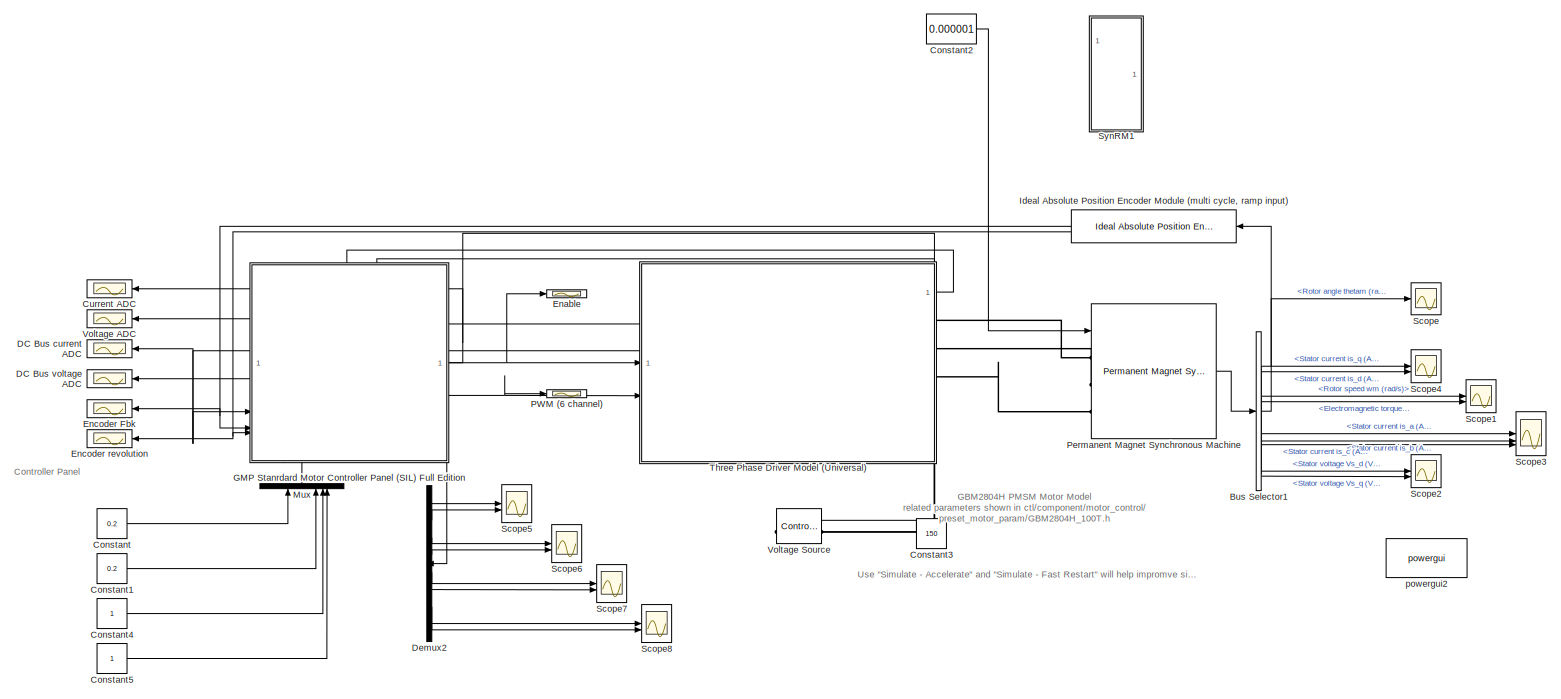
[diagram: root canvas - part 1/1, most of the canvas]
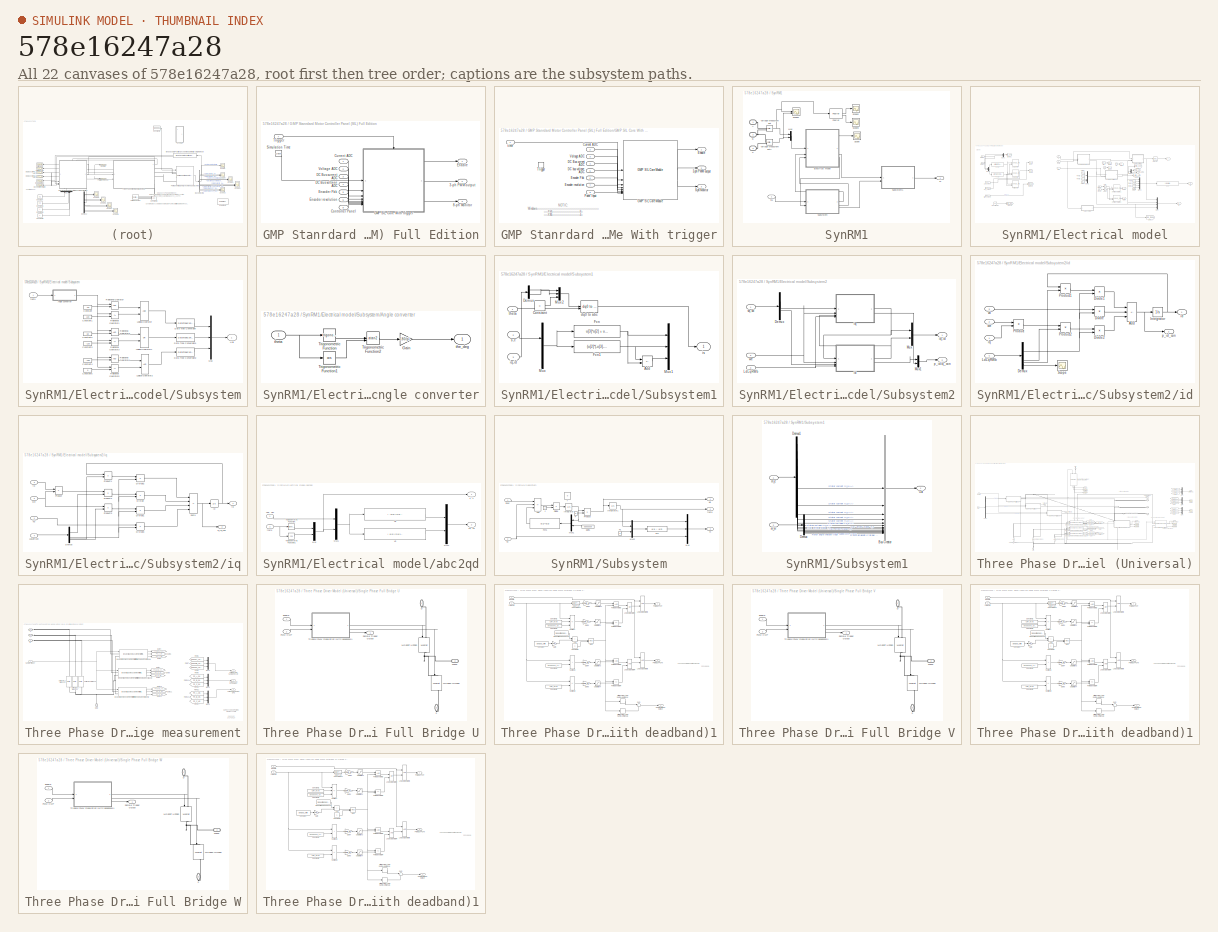
[diagram: thumbnail index - all 22 canvases of the model, root first then tree order]
MODEL slx_578e16247a28
KIND model
CONFIG AbsTol = auto
CONFIG EnableMultiTasking = off
CONFIG FixedStep = auto
CONFIG MaxStep = auto
CONFIG MinStep = auto
CONFIG RelTol = 1e-3
CONFIG SampleTimeConstraint = Unconstrained
CONFIG SolverName = VariableStepAuto
CONFIG StartTime = 0.0
CONFIG StopTime = 10
WORKSPACE source: mxarray member
WORKSPACE B = 0
WORKSPACE BW_i = 800
WORKSPACE Flux_t = 0.12
WORKSPACE IQ24: Simulink.NumericType (value not decoded)
WORKSPACE J = 0.018
WORKSPACE K_d = 3.72061852168
WORKSPACE K_m = 0.128242020589
WORKSPACE K_u = 0.00236407598332
WORKSPACE Ki_id = 0.001
WORKSPACE Ki_iq = 1
WORKSPACE Ki_n = 25225.1136556
WORKSPACE Kp_id = 1e-05
WORKSPACE Kp_iq = 5e-05
WORKSPACE Kp_n = 12.6125568278
WORKSPACE Ld_t = 0.00303
WORKSPACE Lq_t = 0.02019
WORKSPACE Max_p = 0.006000830667
WORKSPACE P = 2
WORKSPACE RLS_ini_a = 1000000
WORKSPACE Rd_mos = 0.01
WORKSPACE Rs = 0.1215
WORKSPACE Rv = 6.4
WORKSPACE T_final = 0
WORKSPACE T_initial = 0
WORKSPACE Tes = [4 7 10 7 4]
WORKSPACE Tf_t = 0.1
WORKSPACE Tm = 0
WORKSPACE Udq_limit = 550
WORKSPACE Var = 0
WORKSPACE Vce0 = 0
WORKSPACE Vd0 = 0
WORKSPACE Vdc = 80
WORKSPACE button = 1
WORKSPACE im_limit = 40
WORKSPACE mean_prd = 10
WORKSPACE position_init = 0.2
WORKSPACE r_ce = 1e-08
WORKSPACE r_d = 1e-08
WORKSPACE sample_prd = 100
WORKSPACE step_time = 0.2
WORKSPACE ts = 6.25e-05
WORKSPACE wc = 3500
BLOCK [BusSelector] Bus Selector1
  OutputSignals = Rotor angle thetam (rad),Stator current is_q (A),Stator current is_d (A),Rotor speed wm (rad/s),Electromagnetic torque Te (N*m),Stator current is_a (A),Stator current is_b (A),Stator current is_c (A),Stator voltage Vs_d (V),Stator voltage Vs_q (V)
BLOCK [Constant] Constant
  Value = 0.2
BLOCK [Constant] Constant1
  Value = 0.2
BLOCK [Constant] Constant2
  Value = 0.000001
BLOCK [Constant] Constant3
  NameLocation = top
  Value = 150
BLOCK [Constant] Constant4
BLOCK [Constant] Constant5
BLOCK [Scope] Current ADC
  Floating = off
  NumInputPorts = 1
  ScopeSpecificationString = Simulink.scopes.TimeScopeBlockCfg('CurrentConfiguration', extmgr.ConfigurationSet(extmgr.Configuration('Core','General UI',true),extmgr.Configuration('Core','Source UI',true),extmgr.Configuration('Sources','WiredSimulink',true,'DataLoggingVariableName','ScopeData4'),extmgr.Configuration('Visuals','Time Domain',true,'SerializedDisplays',{struct('MinYLimReal','1963.00000','MaxYLimReal','2133.00000',...<+1699ch>
BLOCK [Scope] DC Bus current ADC
  Floating = off
  NumInputPorts = 1
  ScopeSpecificationString = Simulink.scopes.TimeScopeBlockCfg('CurrentConfiguration', extmgr.ConfigurationSet(extmgr.Configuration('Core','General UI',true),extmgr.Configuration('Core','Source UI',true),extmgr.Configuration('Sources','WiredSimulink',true,'DataLoggingVariableName','ScopeData7'),extmgr.Configuration('Visuals','Time Domain',true),extmgr.Configuration('Tools','Plot Navigation',true),extmgr.Configuration('Tools',...<+40ch>
BLOCK [Scope] DC Bus voltage ADC
  Floating = off
  NumInputPorts = 1
  ScopeSpecificationString = Simulink.scopes.TimeScopeBlockCfg('CurrentConfiguration', extmgr.ConfigurationSet(extmgr.Configuration('Core','General UI',true),extmgr.Configuration('Core','Source UI',true),extmgr.Configuration('Sources','WiredSimulink',true,'DataLoggingVariableName','ScopeData6'),extmgr.Configuration('Visuals','Time Domain',true),extmgr.Configuration('Tools','Plot Navigation',true),extmgr.Configuration('Tools',...<+40ch>
BLOCK [Demux] Demux2
  Outputs = 8
BLOCK [Scope] Enable
  Floating = off
  NumInputPorts = 1
  ScopeSpecificationString = Simulink.scopes.TimeScopeBlockCfg('CurrentConfiguration', extmgr.ConfigurationSet(extmgr.Configuration('Core','General UI',true),extmgr.Configuration('Core','Source UI',true),extmgr.Configuration('Sources','WiredSimulink',true,'DataLoggingVariableName','ScopeData3'),extmgr.Configuration('Visuals','Time Domain',true,'SerializedDisplays',{struct('MinYLimReal','-650.5','MaxYLimReal','5854.5','YLabelR...<+1726ch>
BLOCK [Scope] Encoder Fbk
  Floating = off
  NumInputPorts = 1
  ScopeSpecificationString = Simulink.scopes.TimeScopeBlockCfg('CurrentConfiguration', extmgr.ConfigurationSet(extmgr.Configuration('Core','General UI',true),extmgr.Configuration('Core','Source UI',true),extmgr.Configuration('Sources','WiredSimulink',true,'DataLoggingVariableName','ScopeData8'),extmgr.Configuration('Visuals','Time Domain',true,'SerializedDisplays',{struct('MinYLimReal','-2047.875','MaxYLimReal','18430.875','Y...<+1600ch>
BLOCK [Scope] Encoder revolution
  Floating = off
  NumInputPorts = 1
  ScopeSpecificationString = Simulink.scopes.TimeScopeBlockCfg('CurrentConfiguration', extmgr.ConfigurationSet(extmgr.Configuration('Core','General UI',true),extmgr.Configuration('Core','Source UI',true),extmgr.Configuration('Sources','WiredSimulink',true,'DataLoggingVariableName','ScopeData9'),extmgr.Configuration('Visuals','Time Domain',true,'SerializedDisplays',{struct('MinYLimReal','-10','MaxYLimReal','10','YLabelReal',''...<+849ch>
BLOCK [SubSystem] GMP Stanrdard Motor Controller Panel (SIL) Full Edition
  PortSchema = {"entries":[{"content":{"sides":[{"content":{"connectorIds":["In1","In2","In3","In4","In5","In6"]},"type":"ConnectorPlacement.EquallySpacedRectSide","uuid":"45c67bc9-9540-469a-a4ac-1e12eb9acca3"},{"content":{"connectorIds":["Out1","Out2"],"side":"RIGHT"},"type":"ConnectorPlacement.EquallySpacedRectSide","uuid":"a17116b4-0460-48ab-8ada-a785da6c5e29"},{"content":{"connectorIds":["In7"],"side":"TOP"}...<+438ch>
BLOCK [Outport] GMP Stanrdard Motor Controller Panel (SIL) Full Edition/3-ph PWM output
  Port = 2
BLOCK [Outport] GMP Stanrdard Motor Controller Panel (SIL) Full Edition/8-ph Monitor
  Port = 3
BLOCK [Inport] GMP Stanrdard Motor Controller Panel (SIL) Full Edition/Controller Panel
  Port = 8
BLOCK [Inport] GMP Stanrdard Motor Controller Panel (SIL) Full Edition/Current ADC
BLOCK [Inport] GMP Stanrdard Motor Controller Panel (SIL) Full Edition/DC Bus current ADC
  Port = 3
BLOCK [Inport] GMP Stanrdard Motor Controller Panel (SIL) Full Edition/DC Bus voltage ADC
  Port = 4
BLOCK [Outport] GMP Stanrdard Motor Controller Panel (SIL) Full Edition/Enable
BLOCK [Inport] GMP Stanrdard Motor Controller Panel (SIL) Full Edition/Encoder Fbk
  Port = 5
BLOCK [Inport] GMP Stanrdard Motor Controller Panel (SIL) Full Edition/Encoder revolution
  Port = 6
BLOCK [SubSystem] GMP Stanrdard Motor Controller Panel (SIL) Full Edition/GMP SIL Core With trigger
BLOCK [Outport] GMP Stanrdard Motor Controller Panel (SIL) Full Edition/GMP SIL Core With trigger/3-ph PWM output
  Port = 2
BLOCK [Outport] GMP Stanrdard Motor Controller Panel (SIL) Full Edition/GMP SIL Core With trigger/8-ph Monitor
  Port = 3
BLOCK [Inport] GMP Stanrdard Motor Controller Panel (SIL) Full Edition/GMP SIL Core With trigger/Current ADC
  Port = 2
BLOCK [Inport] GMP Stanrdard Motor Controller Panel (SIL) Full Edition/GMP SIL Core With trigger/DC Bus current ADC
  Port = 4
BLOCK [Inport] GMP Stanrdard Motor Controller Panel (SIL) Full Edition/GMP SIL Core With trigger/DC bus voltage ADC
  Port = 5
BLOCK [Outport] GMP Stanrdard Motor Controller Panel (SIL) Full Edition/GMP SIL Core With trigger/Enable
BLOCK [Inport] GMP Stanrdard Motor Controller Panel (SIL) Full Edition/GMP SIL Core With trigger/Encoder Fbk
  Port = 6
BLOCK [Inport] GMP Stanrdard Motor Controller Panel (SIL) Full Edition/GMP SIL Core With trigger/Encoder revolution
  Port = 7
BLOCK [Reference] GMP Stanrdard Motor Controller Panel (SIL) Full Edition/GMP SIL Core With trigger/GMP SIL Core Module  REF=gmp_sil_core_pack/GMP SIL Core Module
  SourceBlock = gmp_sil_core_pack/GMP SIL Core Module
  SourceProductName = GMP Utilities Library
  SourceType = GMP CTL SIL Core
BLOCK [Inport] GMP Stanrdard Motor Controller Panel (SIL) Full Edition/GMP SIL Core With trigger/Panel Input
  Port = 8
BLOCK [TriggerPort] GMP Stanrdard Motor Controller Panel (SIL) Full Edition/GMP SIL Core With trigger/Trigger
  PortDimensions = 1
  StatesWhenEnabling = held
  VariantControl = (inherit)
BLOCK [Inport] GMP Stanrdard Motor Controller Panel (SIL) Full Edition/GMP SIL Core With trigger/Voltage ADC
  Port = 3
BLOCK [Inport] GMP Stanrdard Motor Controller Panel (SIL) Full Edition/GMP SIL Core With trigger/time
BLOCK [Clock] GMP Stanrdard Motor Controller Panel (SIL) Full Edition/Simulation Time
BLOCK [Inport] GMP Stanrdard Motor Controller Panel (SIL) Full Edition/Trigger
  Port = 7
BLOCK [Inport] GMP Stanrdard Motor Controller Panel (SIL) Full Edition/Voltage ADC
  Port = 2
BLOCK [Reference] Ideal Absolute Position Encoder Module (multi cycle, ramp input)  REF=peripheral_utilities/Ideal Absolute Position Encoder Module (multi cycle, ramp input)
  NameLocation = top
  SourceBlock = peripheral_utilities/Ideal Absolute Position Encoder Module (multi cycle, ramp input)
  SourceProductName = GMP Utilities Library
BLOCK [Mux] Mux
  DisplayOption = bar
  NameLocation = right
BLOCK [Scope] PWM (6 channel)
  Floating = off
  NumInputPorts = 1
  ScopeSpecificationString = Simulink.scopes.TimeScopeBlockCfg('CurrentConfiguration', extmgr.ConfigurationSet(extmgr.Configuration('Core','General UI',true),extmgr.Configuration('Core','Source UI',true),extmgr.Configuration('Sources','WiredSimulink',true,'DataLoggingVariableName','ScopeData4'),extmgr.Configuration('Visuals','Time Domain',true,'SerializedDisplays',{struct('MinYLimReal','-552.375','MaxYLimReal','4971.375','YLa...<+1738ch>
BLOCK [Reference] Permanent Magnet Synchronous Machine  REF=spsPermanentMagnetSynchronousMachineLib/Permanent Magnet
Synchronous Machine
  LibrarySourceBlock = sps_lib/Electrical Machines/Permanent Magnet\nSynchronous Machine
  SourceBlock = spsPermanentMagnetSynchronousMachineLib/Permanent Magnet\nSynchronous Machine
  SourceType = Permanent Magnet Synchronous Machine
BLOCK [Scope] Scope
  Floating = off
  NumInputPorts = 1
  ScopeSpecificationString = Simulink.scopes.TimeScopeBlockCfg('CurrentConfiguration', extmgr.ConfigurationSet(extmgr.Configuration('Core','General UI',true),extmgr.Configuration('Core','Source UI',true),extmgr.Configuration('Sources','WiredSimulink',true,'DataLoggingVariableName','ScopeData1','DataLoggingDecimateData',true,'DataLoggingDecimation','100'),extmgr.Configuration('Visuals','Time Domain',true,'SerializedDisplays',{...<+1446ch>
BLOCK [Scope] Scope1
  Floating = off
  NumInputPorts = 2
  ScopeSpecificationString = Simulink.scopes.TimeScopeBlockCfg('CurrentConfiguration', extmgr.ConfigurationSet(extmgr.Configuration('Core','General UI',true),extmgr.Configuration('Core','Source UI',true),extmgr.Configuration('Sources','WiredSimulink',true,'DataLoggingVariableName','ScopeData1'),extmgr.Configuration('Visuals','Time Domain',true,'SerializedDisplays',{struct('MinYLimReal','-15.77462','MaxYLimReal','14.17745','YL...<+1525ch>
BLOCK [Scope] Scope2
  Floating = off
  NumInputPorts = 2
  ScopeSpecificationString = Simulink.scopes.TimeScopeBlockCfg('CurrentConfiguration', extmgr.ConfigurationSet(extmgr.Configuration('Core','General UI',true),extmgr.Configuration('Core','Source UI',true),extmgr.Configuration('Sources','WiredSimulink',true,'DataLoggingVariableName','ScopeData2'),extmgr.Configuration('Visuals','Time Domain',true,'SerializedDisplays',{struct('MinYLimReal','-34.84069','MaxYLimReal','112.7676','YL...<+1516ch>
BLOCK [Scope] Scope3
  Floating = off
  NumInputPorts = 3
  ScopeSpecificationString = Simulink.scopes.TimeScopeBlockCfg('CurrentConfiguration', extmgr.ConfigurationSet(extmgr.Configuration('Core','General UI',true),extmgr.Configuration('Core','Source UI',true),extmgr.Configuration('Sources','WiredSimulink',true,'DataLoggingVariableName','ScopeData3','DataLoggingDecimateData',true,'DataLoggingDecimation','100'),extmgr.Configuration('Visuals','Time Domain',true,'SerializedDisplays',{...<+1605ch>
BLOCK [Scope] Scope4
  Floating = off
  NumInputPorts = 2
  ScopeSpecificationString = Simulink.scopes.TimeScopeBlockCfg('CurrentConfiguration', extmgr.ConfigurationSet(extmgr.Configuration('Core','General UI',true),extmgr.Configuration('Core','Source UI',true),extmgr.Configuration('Sources','WiredSimulink',true,'DataLoggingVariableName','ScopeData3','DataLoggingDecimateData',true,'DataLoggingDecimation','100'),extmgr.Configuration('Visuals','Time Domain',true,'SerializedDisplays',{...<+1579ch>
BLOCK [Scope] Scope5
  Floating = off
  NumInputPorts = 2
  ScopeSpecificationString = Simulink.scopes.TimeScopeBlockCfg('CurrentConfiguration', extmgr.ConfigurationSet(extmgr.Configuration('Core','General UI',true),extmgr.Configuration('Core','Source UI',true),extmgr.Configuration('Sources','WiredSimulink',true,'DataLoggingVariableName','ScopeData10','DataLoggingDecimation','100'),extmgr.Configuration('Visuals','Time Domain',true,'SerializedDisplays',{struct('MinYLimReal','-0.75','...<+1633ch>
BLOCK [Scope] Scope6
  Floating = off
  NumInputPorts = 2
  ScopeSpecificationString = Simulink.scopes.TimeScopeBlockCfg('CurrentConfiguration', extmgr.ConfigurationSet(extmgr.Configuration('Core','General UI',true),extmgr.Configuration('Core','Source UI',true),extmgr.Configuration('Sources','WiredSimulink',true,'DataLoggingVariableName','ScopeData11'),extmgr.Configuration('Visuals','Time Domain',true,'SerializedDisplays',{struct('MinYLimReal','-12.5','MaxYLimReal','12.5','YLabelRea...<+1577ch>
BLOCK [Scope] Scope7
  Floating = off
  NumInputPorts = 2
  ScopeSpecificationString = Simulink.scopes.TimeScopeBlockCfg('CurrentConfiguration', extmgr.ConfigurationSet(extmgr.Configuration('Core','General UI',true),extmgr.Configuration('Core','Source UI',true),extmgr.Configuration('Sources','WiredSimulink',true,'DataLoggingVariableName','ScopeData1'),extmgr.Configuration('Visuals','Time Domain',true,'SerializedDisplays',{struct('MinYLimReal','-0.75003','MaxYLimReal','0.75031','YLab...<+1680ch>
BLOCK [Scope] Scope8
  Floating = off
  NumInputPorts = 2
  ScopeSpecificationString = Simulink.scopes.TimeScopeBlockCfg('CurrentConfiguration', extmgr.ConfigurationSet(extmgr.Configuration('Core','General UI',true),extmgr.Configuration('Core','Source UI',true),extmgr.Configuration('Sources','WiredSimulink',true,'DataLoggingVariableName','ScopeData2'),extmgr.Configuration('Visuals','Time Domain',true,'SerializedDisplays',{struct('MinYLimReal','-0.03134','MaxYLimReal','0.28207','YLab...<+1681ch>
BLOCK [SubSystem] SynRM1
  Commented = on
BLOCK [PMIOPort] SynRM1/A
  Side = Left
BLOCK [PMIOPort] SynRM1/B
  Port = 2
  Side = Left
BLOCK [PMIOPort] SynRM1/C
  Port = 3
  Side = Left
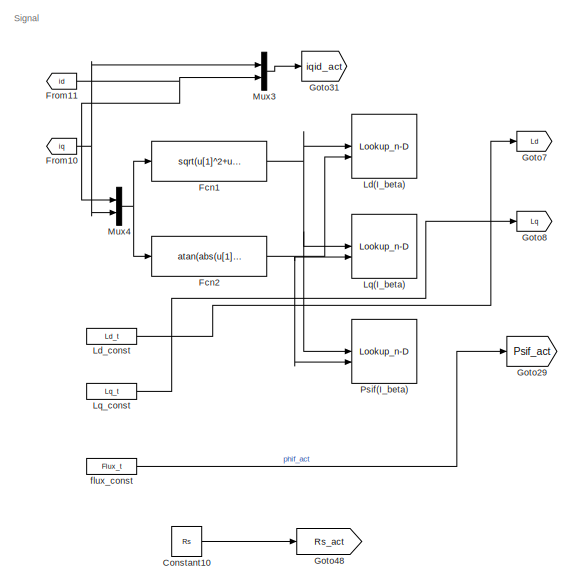
[diagram: SynRM1/Electrical model - part 1/2, left side, full height]
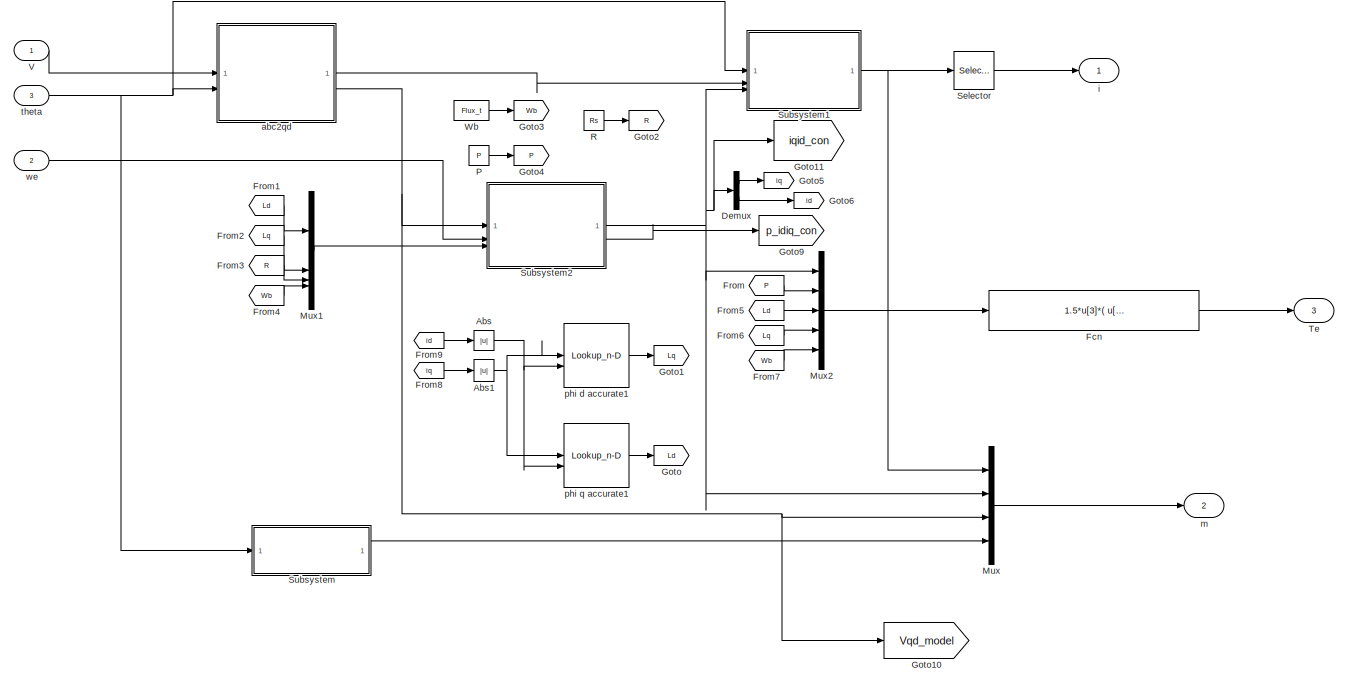
[diagram: SynRM1/Electrical model - part 2/2, right side, full height]
BLOCK [SubSystem] SynRM1/Electrical model
BLOCK [Abs] SynRM1/Electrical model/Abs
  Commented = on
  SaturateOnIntegerOverflow = off
BLOCK [Abs] SynRM1/Electrical model/Abs1
  Commented = on
  SaturateOnIntegerOverflow = off
BLOCK [Constant] SynRM1/Electrical model/Constant10
  Value = Rs
BLOCK [Demux] SynRM1/Electrical model/Demux
  Outputs = 2
BLOCK [Fcn] SynRM1/Electrical model/Fcn
  Expr = 1.5*u[3]*( u[6]*u[1] + (u[4]-u[5])*u[1]*u[2] )
BLOCK [Fcn] SynRM1/Electrical model/Fcn1
  Expr = sqrt(u[1]^2+u[2]^2 )
BLOCK [Fcn] SynRM1/Electrical model/Fcn2
  Expr = atan(abs(u[1]/u[2]))
BLOCK [From] SynRM1/Electrical model/From
  GotoTag = P
BLOCK [From] SynRM1/Electrical model/From1
  GotoTag = Ld
BLOCK [From] SynRM1/Electrical model/From10
  GotoTag = iq
BLOCK [From] SynRM1/Electrical model/From11
  GotoTag = id
BLOCK [From] SynRM1/Electrical model/From2
  GotoTag = Lq
BLOCK [From] SynRM1/Electrical model/From3
  GotoTag = R
BLOCK [From] SynRM1/Electrical model/From4
  GotoTag = Wb
BLOCK [From] SynRM1/Electrical model/From5
  GotoTag = Ld
BLOCK [From] SynRM1/Electrical model/From6
  GotoTag = Lq
BLOCK [From] SynRM1/Electrical model/From7
  GotoTag = Wb
BLOCK [From] SynRM1/Electrical model/From8
  Commented = on
  GotoTag = iq
BLOCK [From] SynRM1/Electrical model/From9
  Commented = on
  GotoTag = id
BLOCK [Goto] SynRM1/Electrical model/Goto
  Commented = on
  GotoTag = Ld
BLOCK [Goto] SynRM1/Electrical model/Goto1
  Commented = on
  GotoTag = Lq
BLOCK [Goto] SynRM1/Electrical model/Goto10
  GotoTag = Vqd_model
BLOCK [Goto] SynRM1/Electrical model/Goto11
  GotoTag = iqid_con
BLOCK [Goto] SynRM1/Electrical model/Goto2
  GotoTag = R
BLOCK [Goto] SynRM1/Electrical model/Goto29
  GotoTag = Psif_act
BLOCK [Goto] SynRM1/Electrical model/Goto3
  GotoTag = Wb
BLOCK [Goto] SynRM1/Electrical model/Goto31
  GotoTag = iqid_act
BLOCK [Goto] SynRM1/Electrical model/Goto4
  GotoTag = P
BLOCK [Goto] SynRM1/Electrical model/Goto48
  GotoTag = Rs_act
BLOCK [Goto] SynRM1/Electrical model/Goto5
  GotoTag = iq
BLOCK [Goto] SynRM1/Electrical model/Goto6
  GotoTag = id
BLOCK [Goto] SynRM1/Electrical model/Goto7
  GotoTag = Ld
BLOCK [Goto] SynRM1/Electrical model/Goto8
  GotoTag = Lq
BLOCK [Goto] SynRM1/Electrical model/Goto9
  GotoTag = p_idiq_con
BLOCK [Lookup_n-D] SynRM1/Electrical model/Ld(I_beta)
  BreakpointsForDimension1 = [0,4,8,12,16,20,24,28,32,36,40,44,48,52,56,60,64,68,72,76]
  BreakpointsForDimension2 = [0,4,8,12,16,20,24,28,32,36,40,44,48,52,56,60,64,68,72,76,80,84,88,90]
  InputPortMap = u0,u1
  InterpMethod = Akima spline
  RndMeth = Simplest
  Table = [0.0090049,0.0090049,0.0090049,0.0090049,0.0090049,0.0090049,0.0090049,0.0090049,0.0090049,0.0090049,0.0090049,0.0090049,0.0090049,0.0090049,0.0090049,0.0090049,0.0090049,0.0090049,0.0090049,0.0090049,0.0090049,0.0090049,0.0090049,0.0090049;0.0091068,0.0083359,0.0077182,0.0071952,0.0067602,0.0063986,0.0061075,0.0058615,0.0056442,0.0054621,0.0053073,0.0051722,0.0050586,0.0049576,0.0048709,0.0047948...<+4357ch>
BLOCK [Constant] SynRM1/Electrical model/Ld_const
  Value = Ld_t
BLOCK [Lookup_n-D] SynRM1/Electrical model/Lq(I_beta)
  BreakpointsForDimension1 = [0,4,8,12,16,20,24,28,32,36,40,44,48,52,56,60,64,68,72,76]
  BreakpointsForDimension2 = [0,4,8,12,16,20,24,28,32,36,40,44,48,52,56,60,64,68,72,76,80,84,88,90]
  InputPortMap = u0,u1
  InterpMethod = Akima spline
  RndMeth = Simplest
  Table = [0.027272,0.027272,0.027272,0.027272,0.027272,0.027272,0.027272,0.027272,0.027272,0.027272,0.027272,0.027272,0.027272,0.027272,0.027272,0.027272,0.027272,0.027272,0.027272,0.027272,0.027272,0.027272,0.027272,0.027272;0.027457,0.027451,0.027443,0.027434,0.027425,0.027414,0.027402,0.02739,0.027376,0.027361,0.027345,0.027328,0.027312,0.027294,0.027277,0.02726,0.027243,0.027228,0.027214,0.027202,0.027...<+3984ch>
BLOCK [Constant] SynRM1/Electrical model/Lq_const
  Value = Lq_t
BLOCK [Mux] SynRM1/Electrical model/Mux
  DisplayOption = bar
  Inputs = [3, 2, 2, 3]
BLOCK [Mux] SynRM1/Electrical model/Mux1
  DisplayOption = bar
BLOCK [Mux] SynRM1/Electrical model/Mux2
  DisplayOption = bar
  Inputs = [2, 1, 1, 1, 1]
BLOCK [Mux] SynRM1/Electrical model/Mux3
  DisplayOption = bar
  Inputs = 2
BLOCK [Mux] SynRM1/Electrical model/Mux4
  DisplayOption = bar
  Inputs = 2
BLOCK [Constant] SynRM1/Electrical model/P
  Value = P
BLOCK [Lookup_n-D] SynRM1/Electrical model/Psif(I_beta)
  BreakpointsForDimension1 = [0,4,8,12,16,20,24,28,32,36,40,44,48,52,56,60,64,68,72,76]
  BreakpointsForDimension2 = [0,4,8,12,16,20,24,28,32,36,40,44,48,52,56,60,64,68,72,76,80,84,88,90]
  InputPortMap = u0,u1
  InterpMethod = Akima spline
  RndMeth = Simplest
  Table = [0.098812,0.098812,0.098812,0.098812,0.098812,0.098812,0.098812,0.098812,0.098812,0.098812,0.098812,0.098812,0.098812,0.098812,0.098812,0.098812,0.098812,0.098812,0.098812,0.098812,0.098812,0.098812,0.098812,0.098812;0.10048,0.10244,0.104,0.10523,0.10621,0.107,0.10765,0.10817,0.10856,0.10888,0.10913,0.10932,0.10947,0.10958,0.10965,0.10969,0.10969,0.10971,0.10973,0.10973,0.10973,0.10972,0.10971,0.1...<+3421ch>
BLOCK [Constant] SynRM1/Electrical model/R
  Value = Rs
BLOCK [Selector] SynRM1/Electrical model/Selector
  IndexOptions = Index vector (dialog)
  Indices = [1 2]
  InputPortWidth = 3
  OutputSizes = 1
BLOCK [SubSystem] SynRM1/Electrical model/Subsystem
BLOCK [SubSystem] SynRM1/Electrical model/Subsystem/Angle converter
BLOCK [Gain] SynRM1/Electrical model/Subsystem/Angle converter/Gain
  Gain = 180/pi
BLOCK [Trigonometry] SynRM1/Electrical model/Subsystem/Angle converter/Trigonometric Function
BLOCK [Trigonometry] SynRM1/Electrical model/Subsystem/Angle converter/Trigonometric Function1
  Operator = cos
BLOCK [Trigonometry] SynRM1/Electrical model/Subsystem/Angle converter/Trigonometric Function2
  Operator = atan2
BLOCK [Outport] SynRM1/Electrical model/Subsystem/Angle converter/the_deg
  VectorParamsAs1DForOutWhenUnconnected = off
BLOCK [Inport] SynRM1/Electrical model/Subsystem/Angle converter/theta
BLOCK [Constant] SynRM1/Electrical model/Subsystem/Constant
  Value = -60
BLOCK [Constant] SynRM1/Electrical model/Subsystem/Constant1
  Value = 120
BLOCK [Constant] SynRM1/Electrical model/Subsystem/Constant2
  Value = 60
BLOCK [Constant] SynRM1/Electrical model/Subsystem/Constant3
  Value = -120
BLOCK [Constant] SynRM1/Electrical model/Subsystem/Constant4
  Value = -180
BLOCK [Constant] SynRM1/Electrical model/Subsystem/Constant5
  Value = 0
BLOCK [DataTypeConversion] SynRM1/Electrical model/Subsystem/Data Type Conversion
  OutDataTypeStr = double
  SaturateOnIntegerOverflow = off
BLOCK [DataTypeConversion] SynRM1/Electrical model/Subsystem/Data Type Conversion1
  OutDataTypeStr = double
  SaturateOnIntegerOverflow = off
BLOCK [DataTypeConversion] SynRM1/Electrical model/Subsystem/Data Type Conversion2
  OutDataTypeStr = double
  SaturateOnIntegerOverflow = off
BLOCK [Outport] SynRM1/Electrical model/Subsystem/Hall
  VectorParamsAs1DForOutWhenUnconnected = off
BLOCK [Logic] SynRM1/Electrical model/Subsystem/Logical Operator
  AllPortsSameDT = off
  OutDataTypeStr = boolean
BLOCK [Logic] SynRM1/Electrical model/Subsystem/Logical Operator1
  AllPortsSameDT = off
  Operator = OR
  OutDataTypeStr = boolean
BLOCK [Logic] SynRM1/Electrical model/Subsystem/Logical Operator2
  AllPortsSameDT = off
  OutDataTypeStr = boolean
BLOCK [Mux] SynRM1/Electrical model/Subsystem/Mux
  DisplayOption = bar
  Inputs = 3
BLOCK [RelationalOperator] SynRM1/Electrical model/Subsystem/Relational Operator
  InputSameDT = off
  OutDataTypeStr = boolean
  RndMeth = Simplest
BLOCK [RelationalOperator] SynRM1/Electrical model/Subsystem/Relational Operator1
  InputSameDT = off
  Operator = <=
  OutDataTypeStr = boolean
  RndMeth = Simplest
BLOCK [RelationalOperator] SynRM1/Electrical model/Subsystem/Relational Operator2
  InputSameDT = off
  OutDataTypeStr = boolean
  RndMeth = Simplest
BLOCK [RelationalOperator] SynRM1/Electrical model/Subsystem/Relational Operator3
  InputSameDT = off
  Operator = <=
  OutDataTypeStr = boolean
  RndMeth = Simplest
BLOCK [RelationalOperator] SynRM1/Electrical model/Subsystem/Relational Operator4
  InputSameDT = off
  OutDataTypeStr = boolean
  RndMeth = Simplest
BLOCK [RelationalOperator] SynRM1/Electrical model/Subsystem/Relational Operator5
  InputSameDT = off
  Operator = <=
  OutDataTypeStr = boolean
  RndMeth = Simplest
BLOCK [Inport] SynRM1/Electrical model/Subsystem/theta
BLOCK [SubSystem] SynRM1/Electrical model/Subsystem1
BLOCK [Sum] SynRM1/Electrical model/Subsystem1/Add
  Commented = on
  IconShape = rectangular
  Inputs = --
BLOCK [Constant] SynRM1/Electrical model/Subsystem1/Constant
  Value = 0
BLOCK [Demux] SynRM1/Electrical model/Subsystem1/Demux
  Outputs = 2
BLOCK [Fcn] SynRM1/Electrical model/Subsystem1/Fcn
  Commented = on
  Expr = u[3]*u[2] + u[4]*u[1]
BLOCK [Fcn] SynRM1/Electrical model/Subsystem1/Fcn1
  Commented = on
  Expr = (u[2]*(-u[3]-sqrt(3)*u[4]) + u[1] * (sqrt(3)*u[3]-u[4])) * 0.5
BLOCK [Mux] SynRM1/Electrical model/Subsystem1/Mux
  Commented = on
  DisplayOption = bar
  Inputs = [2, 2]
BLOCK [Mux] SynRM1/Electrical model/Subsystem1/Mux1
  Commented = on
  DisplayOption = bar
  Inputs = 3
BLOCK [Mux] SynRM1/Electrical model/Subsystem1/Mux2
  DisplayOption = bar
  Inputs = 3
BLOCK [Reference] SynRM1/Electrical model/Subsystem1/dq0 to abc  REF=spsdq0toabcLib/dq0 to abc
  LibrarySourceBlock = sps_lib/Control/dq0 to abc
  SourceBlock = spsdq0toabcLib/dq0 to abc
  SourceType = dq0 to abc Transformation
BLOCK [Inport] SynRM1/Electrical model/Subsystem1/iq,id
  Port = 3
BLOCK [Outport] SynRM1/Electrical model/Subsystem1/is
  VectorParamsAs1DForOutWhenUnconnected = off
BLOCK [Inport] SynRM1/Electrical model/Subsystem1/s,c
  Port = 2
BLOCK [Inport] SynRM1/Electrical model/Subsystem1/theta
BLOCK [SubSystem] SynRM1/Electrical model/Subsystem2
BLOCK [Demux] SynRM1/Electrical model/Subsystem2/Demux
  Outputs = 2
BLOCK [Inport] SynRM1/Electrical model/Subsystem2/LdLqRWb
  Port = 3
BLOCK [Mux] SynRM1/Electrical model/Subsystem2/Mux
  DisplayOption = bar
  Inputs = 2
BLOCK [Mux] SynRM1/Electrical model/Subsystem2/Mux1
  DisplayOption = bar
  Inputs = 2
BLOCK [SubSystem] SynRM1/Electrical model/Subsystem2/id
BLOCK [Sum] SynRM1/Electrical model/Subsystem2/id/Add
  IconShape = rectangular
  Inputs = -++
BLOCK [Demux] SynRM1/Electrical model/Subsystem2/id/Demux
BLOCK [Product] SynRM1/Electrical model/Subsystem2/id/Divide
  Inputs = */
BLOCK [Product] SynRM1/Electrical model/Subsystem2/id/Divide1
  Inputs = */
BLOCK [Product] SynRM1/Electrical model/Subsystem2/id/Divide2
  Inputs = */
BLOCK [Integrator] SynRM1/Electrical model/Subsystem2/id/Integrator
BLOCK [Inport] SynRM1/Electrical model/Subsystem2/id/LdLqRWb
  Port = 4
BLOCK [Product] SynRM1/Electrical model/Subsystem2/id/Product
BLOCK [Product] SynRM1/Electrical model/Subsystem2/id/Product1
BLOCK [Product] SynRM1/Electrical model/Subsystem2/id/Product2
BLOCK [Scope] SynRM1/Electrical model/Subsystem2/id/Scope
  Floating = off
  NumInputPorts = 1
  ScopeSpecificationString = Simulink.scopes.TimeScopeBlockCfg('CurrentConfiguration', extmgr.ConfigurationSet(extmgr.Configuration('Core','General UI',true),extmgr.Configuration('Core','Source UI',true),extmgr.Configuration('Sources','WiredSimulink',true,'DataLoggingDecimation','100','DataLoggingDecimateData',true),extmgr.Configuration('Visuals','Time Domain',true),extmgr.Configuration('Tools','Plot Navigation',true),extmgr....<+62ch>
BLOCK [Outport] SynRM1/Electrical model/Subsystem2/id/id
  VectorParamsAs1DForOutWhenUnconnected = off
BLOCK [Inport] SynRM1/Electrical model/Subsystem2/id/iq
BLOCK [Outport] SynRM1/Electrical model/Subsystem2/id/p_id_con
  Port = 2
BLOCK [Inport] SynRM1/Electrical model/Subsystem2/id/vd
  Port = 3
BLOCK [Inport] SynRM1/Electrical model/Subsystem2/id/we
  Port = 2
BLOCK [SubSystem] SynRM1/Electrical model/Subsystem2/iq
BLOCK [Outport] SynRM1/Electrical model/Subsystem2/iq,id
  VectorParamsAs1DForOutWhenUnconnected = off
BLOCK [Demux] SynRM1/Electrical model/Subsystem2/iq/Demux
BLOCK [Product] SynRM1/Electrical model/Subsystem2/iq/Divide
  Inputs = */
BLOCK [Product] SynRM1/Electrical model/Subsystem2/iq/Divide1
  Inputs = */
BLOCK [Product] SynRM1/Electrical model/Subsystem2/iq/Divide2
  Inputs = */
BLOCK [Product] SynRM1/Electrical model/Subsystem2/iq/Divide3
  Inputs = */
BLOCK [Integrator] SynRM1/Electrical model/Subsystem2/iq/Iq
BLOCK [Inport] SynRM1/Electrical model/Subsystem2/iq/LdLqRWb
  Port = 4
BLOCK [Product] SynRM1/Electrical model/Subsystem2/iq/Product
BLOCK [Product] SynRM1/Electrical model/Subsystem2/iq/Product1
BLOCK [Product] SynRM1/Electrical model/Subsystem2/iq/Product2
BLOCK [Product] SynRM1/Electrical model/Subsystem2/iq/Product3
BLOCK [Sum] SynRM1/Electrical model/Subsystem2/iq/Sum1
  IconShape = rectangular
  Inputs = ---+
BLOCK [Inport] SynRM1/Electrical model/Subsystem2/iq/id
  Port = 3
BLOCK [Outport] SynRM1/Electrical model/Subsystem2/iq/iq
  VectorParamsAs1DForOutWhenUnconnected = off
BLOCK [Outport] SynRM1/Electrical model/Subsystem2/iq/p_iq_con
  Port = 2
BLOCK [Inport] SynRM1/Electrical model/Subsystem2/iq/vq
BLOCK [Inport] SynRM1/Electrical model/Subsystem2/iq/we
  Port = 2
BLOCK [Outport] SynRM1/Electrical model/Subsystem2/p_idiq_con
  Port = 2
BLOCK [Inport] SynRM1/Electrical model/Subsystem2/vq,vd
BLOCK [Inport] SynRM1/Electrical model/Subsystem2/we
  Port = 2
BLOCK [Outport] SynRM1/Electrical model/Te
  Port = 3
  VectorParamsAs1DForOutWhenUnconnected = off
BLOCK [Inport] SynRM1/Electrical model/V
BLOCK [Constant] SynRM1/Electrical model/Wb
  Value = Flux_t
BLOCK [SubSystem] SynRM1/Electrical model/abc2qd
BLOCK [Mux] SynRM1/Electrical model/abc2qd/Mux
  DisplayOption = bar
  Inputs = 2
BLOCK [Mux] SynRM1/Electrical model/abc2qd/Mux1
  DisplayOption = bar
  Inputs = [2, 2]
BLOCK [Mux] SynRM1/Electrical model/abc2qd/Mux2
  DisplayOption = bar
  Inputs = 2
BLOCK [Trigonometry] SynRM1/Electrical model/abc2qd/Trigonometric Function
BLOCK [Trigonometry] SynRM1/Electrical model/abc2qd/Trigonometric Function1
  Operator = cos
BLOCK [Inport] SynRM1/Electrical model/abc2qd/Vab, Vbc
BLOCK [Fcn] SynRM1/Electrical model/abc2qd/Vd
  Expr = ( u[4]*(2*u[1]+u[2]) + (sqrt(3)*u[2]*u[3]) ) * 1/3
BLOCK [Fcn] SynRM1/Electrical model/abc2qd/Vq
  Expr = ( -u[3]*(2*u[1]+u[2]) + (sqrt(3)*u[2]*u[4]) ) * 1/3
BLOCK [Outport] SynRM1/Electrical model/abc2qd/s, c
  VectorParamsAs1DForOutWhenUnconnected = off
BLOCK [Inport] SynRM1/Electrical model/abc2qd/theta
  Port = 2
BLOCK [Outport] SynRM1/Electrical model/abc2qd/vq, vd
  Port = 2
  VectorParamsAs1DForOutWhenUnconnected = off
BLOCK [Constant] SynRM1/Electrical model/flux_const
  Value = Flux_t
BLOCK [Outport] SynRM1/Electrical model/i
  VectorParamsAs1DForOutWhenUnconnected = off
BLOCK [Outport] SynRM1/Electrical model/m
  Port = 2
  VectorParamsAs1DForOutWhenUnconnected = off
BLOCK [Lookup_n-D] SynRM1/Electrical model/phi d accurate1
  BreakpointsForDimension1 = [0     3     6     9    12    15    18    21    24    27    30]
  BreakpointsForDimension2 = [0     3     6     9    12    15    18    21    24    27    30]
  Commented = on
  InputPortMap = u0,u1
  RndMeth = Simplest
  Table = [0.0227	0.0222	0.021833333	0.0215	0.021233333	0.021	0.0208	0.020633333	0.0205	0.020366667	0.0202;\n0.0227	0.0222	0.021833333	0.0215	0.021233333	0.021	0.0208	0.020633333	0.0205	0.020366667	0.0202;\n0.02265	0.022283333	0.021916667	0.0216	0.021333333	0.021083333	0.020883333	0.020683333	0.0205	0.020283333	0.02005;\n0.022433333	0.022144444	0.021822222	0.021522222	0.021244444	0.020977778	0.020711111	0.0204...<+893ch>
BLOCK [Lookup_n-D] SynRM1/Electrical model/phi q accurate1
  BreakpointsForDimension1 = [0     3     6     9    12    15    18    21    24    27    30]
  BreakpointsForDimension2 = [0     3     6     9    12    15    18    21    24    27    30]
  Commented = on
  InputPortMap = u0,u1
  RndMeth = Simplest
  Table = [0.010733333	0.010733333	0.00825	0.007344444	0.006841667	0.00652	0.0063	0.006133333	0.006004167	0.0059	0.005816667;\n0.0105	0.0105	0.008183333	0.007288889	0.006808333	0.0065	0.006283333	0.00612381	0.005995833	0.005896296	0.005806667;\n0.009833333	0.009833333	0.007916667	0.007144444	0.006716667	0.006433333	0.006238889	0.006085714	0.005966667	0.005866667	0.005776667;\n0.008966667	0.008966667	0.00751666...<+924ch>
BLOCK [Inport] SynRM1/Electrical model/theta
  Port = 3
BLOCK [Inport] SynRM1/Electrical model/we
  Port = 2
BLOCK [Reference] SynRM1/Fourier  REF=spsFourierLib/Fourier
  LibrarySourceBlock = sps_lib/Sensors and Measurements/Fourier
  SourceBlock = spsFourierLib/Fourier
  SourceType = Fourier
BLOCK [Mux] SynRM1/Mux
  DisplayOption = bar
  Inputs = 2
BLOCK [Scope] SynRM1/Scope
  Floating = off
  NumInputPorts = 1
  ScopeSpecificationString = Simulink.scopes.TimeScopeBlockCfg('CurrentConfiguration', extmgr.ConfigurationSet(extmgr.Configuration('Core','General UI',true),extmgr.Configuration('Core','Source UI',true),extmgr.Configuration('Sources','WiredSimulink',true,'DataLoggingVariableName','ScopeData13','DataLoggingDecimation','100','DataLoggingDecimateData',true),extmgr.Configuration('Visuals','Time Domain',true,'SerializedDisplays',...<+1514ch>
BLOCK [Scope] SynRM1/Scope1
  Floating = off
  NumInputPorts = 2
  ScopeSpecificationString = Simulink.scopes.TimeScopeBlockCfg('CurrentConfiguration', extmgr.ConfigurationSet(extmgr.Configuration('Core','General UI',true),extmgr.Configuration('Core','Source UI',true),extmgr.Configuration('Sources','WiredSimulink',true,'DataLoggingVariableName','ScopeData1','DataLoggingDecimation','100','DataLoggingDecimateData',true),extmgr.Configuration('Visuals','Time Domain',true,'SerializedDisplays',{...<+1547ch>
BLOCK [Scope] SynRM1/Scope2
  Floating = off
  NumInputPorts = 1
  ScopeSpecificationString = Simulink.scopes.TimeScopeBlockCfg('CurrentConfiguration', extmgr.ConfigurationSet(extmgr.Configuration('Core','General UI',true),extmgr.Configuration('Core','Source UI',true),extmgr.Configuration('Sources','WiredSimulink',true,'DataLoggingVariableName','ScopeData2','DataLoggingDecimation','100','DataLoggingDecimateData',true),extmgr.Configuration('Visuals','Time Domain',true,'SerializedDisplays',{...<+1786ch>
BLOCK [Scope] SynRM1/Scope3
  Floating = off
  NumInputPorts = 1
  ScopeSpecificationString = Simulink.scopes.TimeScopeBlockCfg('CurrentConfiguration', extmgr.ConfigurationSet(extmgr.Configuration('Core','General UI',true),extmgr.Configuration('Core','Source UI',true),extmgr.Configuration('Sources','WiredSimulink',true,'DataLoggingVariableName','ScopeData3','DataLoggingDecimation','100','DataLoggingDecimateData',true),extmgr.Configuration('Visuals','Time Domain',true,'SerializedDisplays',{...<+1490ch>
BLOCK [SubSystem] SynRM1/Subsystem
BLOCK [Sum] SynRM1/Subsystem/Add
  IconShape = rectangular
  Inputs = -+-
BLOCK [Product] SynRM1/Subsystem/Divide
  Inputs = */
BLOCK [Fcn] SynRM1/Subsystem/Fcn
  Expr = u[1] / u[2]
BLOCK [Fcn] SynRM1/Subsystem/Fcn1
  Expr = u[1]*u[2]
  NameLocation = top
BLOCK [Integrator] SynRM1/Subsystem/Integrator
BLOCK [Integrator] SynRM1/Subsystem/Integrator1
  InitialCondition = position_init
BLOCK [Constant] SynRM1/Subsystem/J
  Value = J
  VectorParams1D = off
BLOCK [Mux] SynRM1/Subsystem/Mux
  DisplayOption = bar
  Inputs = 3
BLOCK [Mux] SynRM1/Subsystem/Mux1
  DisplayOption = bar
  Inputs = 2
  NameLocation = top
BLOCK [Mux] SynRM1/Subsystem/Mux2
  DisplayOption = bar
  Inputs = 2
BLOCK [Constant] SynRM1/Subsystem/P
  Value = P
BLOCK [Constant] SynRM1/Subsystem/P1
  Value = P
BLOCK [Product] SynRM1/Subsystem/Product
BLOCK [Inport] SynRM1/Subsystem/Te
  Port = 2
BLOCK [Constant] SynRM1/Subsystem/f
  Value = 0
BLOCK [Constant] SynRM1/Subsystem/gain1
  NameLocation = top
  Value = 0.0003035
BLOCK [Inport] SynRM1/Subsystem/input
BLOCK [Outport] SynRM1/Subsystem/m
  Port = 3
  VectorParamsAs1DForOutWhenUnconnected = off
BLOCK [Outport] SynRM1/Subsystem/theta
  Port = 2
  VectorParamsAs1DForOutWhenUnconnected = off
BLOCK [Outport] SynRM1/Subsystem/we
  VectorParamsAs1DForOutWhenUnconnected = off
BLOCK [SubSystem] SynRM1/Subsystem1
BLOCK [BusCreator] SynRM1/Subsystem1/Bus Creator
  DisplayOption = bar
  InheritFromInputs = on
  Inputs = 13
BLOCK [Demux] SynRM1/Subsystem1/Demux
  Outputs = [1, 1, 1]
BLOCK [Demux] SynRM1/Subsystem1/Demux1
  Outputs = [1, 1, 1, 1, 1, 1, 1, 1, 1, 1]
BLOCK [Outport] SynRM1/Subsystem1/Out
  VectorParamsAs1DForOutWhenUnconnected = off
BLOCK [Inport] SynRM1/Subsystem1/m_e
BLOCK [Inport] SynRM1/Subsystem1/m_m
  Port = 2
BLOCK [Inport] SynRM1/Tm
BLOCK [Reference] SynRM1/Voltage Measurement  REF=spsVoltageMeasurementLib/Voltage Measurement
  LibrarySourceBlock = sps_lib/Sensors and Measurements/Voltage Measurement
  SourceBlock = spsVoltageMeasurementLib/Voltage Measurement
  SourceType = Voltage Measurement
  UserDataPersistent = on
BLOCK [Reference] SynRM1/Voltage Measurement1  REF=spsVoltageMeasurementLib/Voltage Measurement
  LibrarySourceBlock = sps_lib/Sensors and Measurements/Voltage Measurement
  SourceBlock = spsVoltageMeasurementLib/Voltage Measurement
  SourceType = Voltage Measurement
  UserDataPersistent = on
BLOCK [Outport] SynRM1/m
  VectorParamsAs1DForOutWhenUnconnected = off
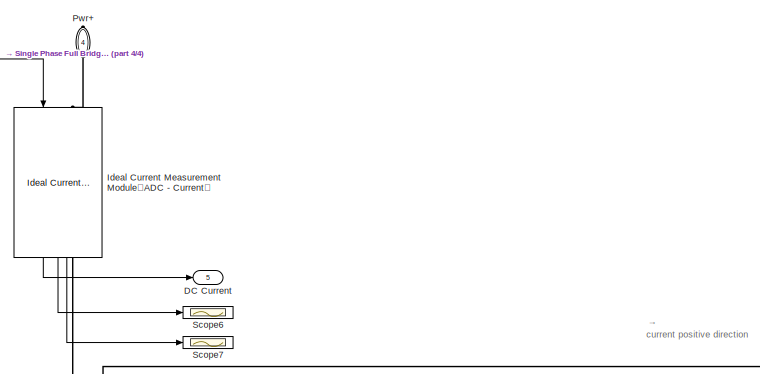
[diagram: Three Phase Driver Model (Universal) - part 1/4, top center region]
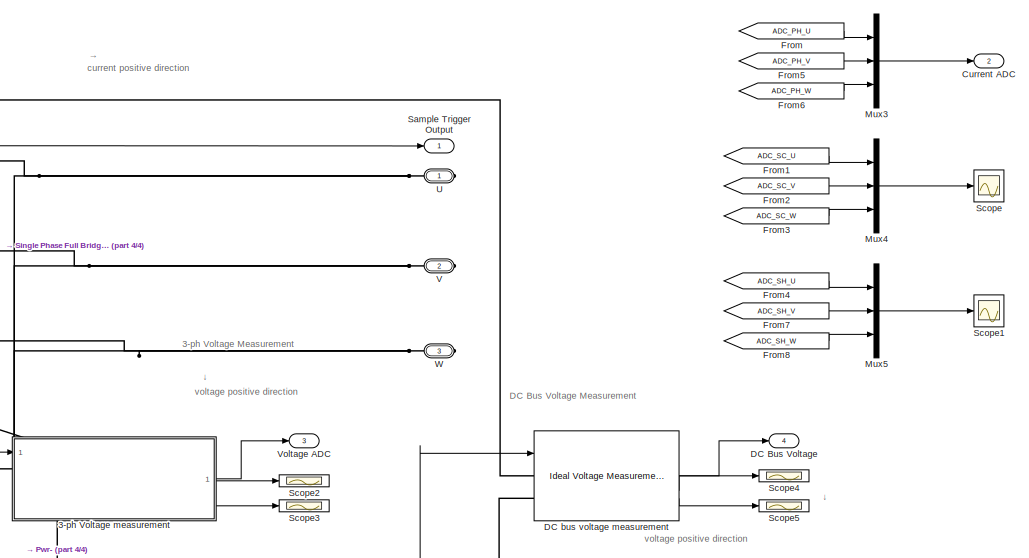
[diagram: Three Phase Driver Model (Universal) - part 2/4, middle right region]
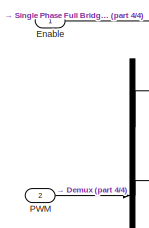
[diagram: Three Phase Driver Model (Universal) - part 3/4, middle left region]
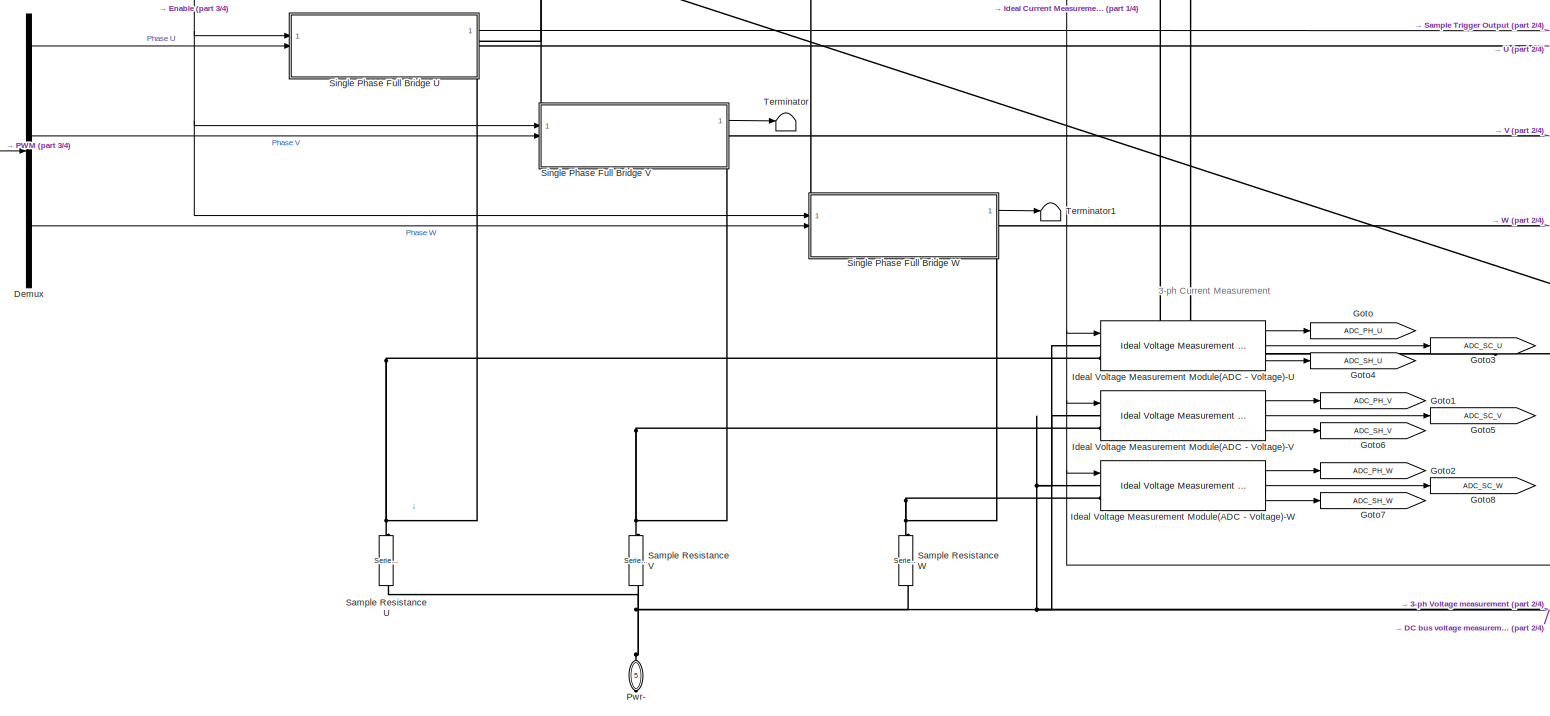
[diagram: Three Phase Driver Model (Universal) - part 4/4, bottom left region]
BLOCK [SubSystem] Three Phase Driver Model (Universal)
  PortSchema = {"entries":[{"content":{"sides":[{"content":{"connectorIds":["In1","In2"]},"type":"ConnectorPlacement.EquallySpacedRectSide","uuid":"3f4c86ad-0582-4f47-8583-a8af9a7f9adc"},{"content":{"connectorIds":["Out1","RConn1","RConn2","RConn3"],"side":"RIGHT"},"type":"ConnectorPlacement.EquallySpacedRectSide","uuid":"ae91f325-3014-4188-9063-296f4d5623fa"},{"content":{"connectorIds":["Out2","Out3","Out4","Ou...<+461ch>
BLOCK [SubSystem] Three Phase Driver Model (Universal)/3-ph Voltage measurement
  AncestorBlock = peripheral_utilities/Three Phases Voltage (ph-gnd) Measurement with Filter
  PortSchema = {"entries":[{"content":{"sides":[{"content":{"connectorIds":["In1"]},"type":"ConnectorPlacement.EquallySpacedRectSide","uuid":"ae4f4612-c092-4fa0-8a43-5c9e823110e3"},{"content":{"connectorIds":["Out1","Out2","Out3"],"side":"RIGHT"},"type":"ConnectorPlacement.EquallySpacedRectSide","uuid":"6db15ef0-d33a-4775-b4e6-14a566796673"},{"content":{"connectorIds":["LConn1","LConn2","LConn3","LConn4"],"side"...<+289ch>
BLOCK [From] Three Phase Driver Model (Universal)/3-ph Voltage measurement/From10
  GotoTag = Ph_B_pu
BLOCK [From] Three Phase Driver Model (Universal)/3-ph Voltage measurement/From11
  GotoTag = Ph_C_pu
BLOCK [From] Three Phase Driver Model (Universal)/3-ph Voltage measurement/From12
  GotoTag = Ph_A_HS
BLOCK [From] Three Phase Driver Model (Universal)/3-ph Voltage measurement/From13
  GotoTag = Ph_B_HS
BLOCK [From] Three Phase Driver Model (Universal)/3-ph Voltage measurement/From14
  GotoTag = Ph_C_HS
BLOCK [From] Three Phase Driver Model (Universal)/3-ph Voltage measurement/From6
  GotoTag = PhaseA_voltage
BLOCK [From] Three Phase Driver Model (Universal)/3-ph Voltage measurement/From7
  GotoTag = PhaseB_voltage
BLOCK [From] Three Phase Driver Model (Universal)/3-ph Voltage measurement/From8
  GotoTag = PhaseC_voltage
BLOCK [From] Three Phase Driver Model (Universal)/3-ph Voltage measurement/From9
  GotoTag = Ph_A_pu
BLOCK [PMIOPort] Three Phase Driver Model (Universal)/3-ph Voltage measurement/GND
  NameLocation = right
  Port = 4
  Side = Left
BLOCK [Goto] Three Phase Driver Model (Universal)/3-ph Voltage measurement/Goto10
  GotoTag = PhaseC_voltage
BLOCK [Goto] Three Phase Driver Model (Universal)/3-ph Voltage measurement/Goto11
  GotoTag = Ph_C_pu
BLOCK [Goto] Three Phase Driver Model (Universal)/3-ph Voltage measurement/Goto12
  GotoTag = Ph_C_HS
BLOCK [Goto] Three Phase Driver Model (Universal)/3-ph Voltage measurement/Goto4
  GotoTag = PhaseA_voltage
BLOCK [Goto] Three Phase Driver Model (Universal)/3-ph Voltage measurement/Goto5
  GotoTag = Ph_A_pu
BLOCK [Goto] Three Phase Driver Model (Universal)/3-ph Voltage measurement/Goto6
  GotoTag = Ph_A_HS
BLOCK [Goto] Three Phase Driver Model (Universal)/3-ph Voltage measurement/Goto7
  GotoTag = PhaseB_voltage
BLOCK [Goto] Three Phase Driver Model (Universal)/3-ph Voltage measurement/Goto8
  GotoTag = Ph_B_pu
BLOCK [Goto] Three Phase Driver Model (Universal)/3-ph Voltage measurement/Goto9
  GotoTag = Ph_B_HS
BLOCK [Reference] Three Phase Driver Model (Universal)/3-ph Voltage measurement/Ideal Voltage Measurement with filter Module(ADC - Voltage)-U  REF=peripheral_utilities/Ideal Voltage Measurement with filter Module(ADC - Voltage)
  SourceBlock = peripheral_utilities/Ideal Voltage Measurement with filter Module(ADC - Voltage)
  SourceProductName = GMP Utilities Library
BLOCK [Reference] Three Phase Driver Model (Universal)/3-ph Voltage measurement/Ideal Voltage Measurement with filter Module(ADC - Voltage)-V  REF=peripheral_utilities/Ideal Voltage Measurement with filter Module(ADC - Voltage)
  SourceBlock = peripheral_utilities/Ideal Voltage Measurement with filter Module(ADC - Voltage)
  SourceProductName = GMP Utilities Library
BLOCK [Reference] Three Phase Driver Model (Universal)/3-ph Voltage measurement/Ideal Voltage Measurement with filter Module(ADC - Voltage)-W  REF=peripheral_utilities/Ideal Voltage Measurement with filter Module(ADC - Voltage)
  SourceBlock = peripheral_utilities/Ideal Voltage Measurement with filter Module(ADC - Voltage)
  SourceProductName = GMP Utilities Library
BLOCK [Mux] Three Phase Driver Model (Universal)/3-ph Voltage measurement/Mux3
  DisplayOption = bar
  Inputs = 3
BLOCK [Mux] Three Phase Driver Model (Universal)/3-ph Voltage measurement/Mux4
  DisplayOption = bar
  Inputs = 3
BLOCK [Mux] Three Phase Driver Model (Universal)/3-ph Voltage measurement/Mux5
  DisplayOption = bar
  Inputs = 3
BLOCK [Inport] Three Phase Driver Model (Universal)/3-ph Voltage measurement/Sample Trigger
BLOCK [Reference] Three Phase Driver Model (Universal)/3-ph Voltage measurement/Series RLC Branch  REF=spsSeriesRLCBranchLib/Series RLC Branch
  NameLocation = left
  SourceBlock = spsSeriesRLCBranchLib/Series RLC Branch
  SourceType = Series RLC Branch
BLOCK [Reference] Three Phase Driver Model (Universal)/3-ph Voltage measurement/Series RLC Branch1  REF=spsSeriesRLCBranchLib/Series RLC Branch
  NameLocation = left
  SourceBlock = spsSeriesRLCBranchLib/Series RLC Branch
  SourceType = Series RLC Branch
BLOCK [Reference] Three Phase Driver Model (Universal)/3-ph Voltage measurement/Series RLC Branch2  REF=spsSeriesRLCBranchLib/Series RLC Branch
  NameLocation = left
  SourceBlock = spsSeriesRLCBranchLib/Series RLC Branch
  SourceType = Series RLC Branch
BLOCK [PMIOPort] Three Phase Driver Model (Universal)/3-ph Voltage measurement/U
  Side = Left
BLOCK [PMIOPort] Three Phase Driver Model (Universal)/3-ph Voltage measurement/V
  Port = 2
  Side = Left
BLOCK [Outport] Three Phase Driver Model (Universal)/3-ph Voltage measurement/Voltage ADC Sample Result
BLOCK [Outport] Three Phase Driver Model (Universal)/3-ph Voltage measurement/Voltage ADC Scope(p.u.)
  Port = 2
BLOCK [Outport] Three Phase Driver Model (Universal)/3-ph Voltage measurement/Voltage Real Value & HS
  Port = 3
BLOCK [PMIOPort] Three Phase Driver Model (Universal)/3-ph Voltage measurement/W
  Port = 3
  Side = Left
BLOCK [Outport] Three Phase Driver Model (Universal)/Current ADC
  Port = 2
BLOCK [Outport] Three Phase Driver Model (Universal)/DC Bus Voltage
  Port = 4
BLOCK [Outport] Three Phase Driver Model (Universal)/DC Current
  Port = 5
BLOCK [Reference] Three Phase Driver Model (Universal)/DC bus voltage measurement  REF=peripheral_utilities/Ideal Voltage Measurement Module(ADC - Voltage)
  SourceBlock = peripheral_utilities/Ideal Voltage Measurement Module(ADC - Voltage)
  SourceProductName = GMP Utilities Library
BLOCK [Demux] Three Phase Driver Model (Universal)/Demux
  Outputs = 3
BLOCK [Inport] Three Phase Driver Model (Universal)/Enable
BLOCK [From] Three Phase Driver Model (Universal)/From
  GotoTag = ADC_PH_U
BLOCK [From] Three Phase Driver Model (Universal)/From1
  GotoTag = ADC_SC_U
BLOCK [From] Three Phase Driver Model (Universal)/From2
  GotoTag = ADC_SC_V
BLOCK [From] Three Phase Driver Model (Universal)/From3
  GotoTag = ADC_SC_W
BLOCK [From] Three Phase Driver Model (Universal)/From4
  GotoTag = ADC_SH_U
BLOCK [From] Three Phase Driver Model (Universal)/From5
  GotoTag = ADC_PH_V
BLOCK [From] Three Phase Driver Model (Universal)/From6
  GotoTag = ADC_PH_W
BLOCK [From] Three Phase Driver Model (Universal)/From7
  GotoTag = ADC_SH_V
BLOCK [From] Three Phase Driver Model (Universal)/From8
  GotoTag = ADC_SH_W
BLOCK [Goto] Three Phase Driver Model (Universal)/Goto
  GotoTag = ADC_PH_U
BLOCK [Goto] Three Phase Driver Model (Universal)/Goto1
  GotoTag = ADC_PH_V
BLOCK [Goto] Three Phase Driver Model (Universal)/Goto2
  GotoTag = ADC_PH_W
BLOCK [Goto] Three Phase Driver Model (Universal)/Goto3
  GotoTag = ADC_SC_U
BLOCK [Goto] Three Phase Driver Model (Universal)/Goto4
  GotoTag = ADC_SH_U
BLOCK [Goto] Three Phase Driver Model (Universal)/Goto5
  GotoTag = ADC_SC_V
BLOCK [Goto] Three Phase Driver Model (Universal)/Goto6
  GotoTag = ADC_SH_V
BLOCK [Goto] Three Phase Driver Model (Universal)/Goto7
  GotoTag = ADC_SH_W
BLOCK [Goto] Three Phase Driver Model (Universal)/Goto8
  GotoTag = ADC_SC_W
BLOCK [Reference] Three Phase Driver Model (Universal)/Ideal Current Measurement Module（ADC - Current）  REF=peripheral_utilities/Ideal Current Measurement Module（ADC - Current）
  NameLocation = left
  SourceBlock = peripheral_utilities/Ideal Current Measurement Module（ADC - Current）
  SourceProductName = GMP Utilities Library
BLOCK [Reference] Three Phase Driver Model (Universal)/Ideal Voltage Measurement Module(ADC - Voltage)-U  REF=peripheral_utilities/Ideal Voltage Measurement Module(ADC - Voltage)
  SourceBlock = peripheral_utilities/Ideal Voltage Measurement Module(ADC - Voltage)
  SourceProductName = GMP Utilities Library
BLOCK [Reference] Three Phase Driver Model (Universal)/Ideal Voltage Measurement Module(ADC - Voltage)-V  REF=peripheral_utilities/Ideal Voltage Measurement Module(ADC - Voltage)
  SourceBlock = peripheral_utilities/Ideal Voltage Measurement Module(ADC - Voltage)
  SourceProductName = GMP Utilities Library
BLOCK [Reference] Three Phase Driver Model (Universal)/Ideal Voltage Measurement Module(ADC - Voltage)-W  REF=peripheral_utilities/Ideal Voltage Measurement Module(ADC - Voltage)
  SourceBlock = peripheral_utilities/Ideal Voltage Measurement Module(ADC - Voltage)
  SourceProductName = GMP Utilities Library
BLOCK [Mux] Three Phase Driver Model (Universal)/Mux3
  DisplayOption = bar
  Inputs = 3
BLOCK [Mux] Three Phase Driver Model (Universal)/Mux4
  DisplayOption = bar
  Inputs = 3
BLOCK [Mux] Three Phase Driver Model (Universal)/Mux5
  DisplayOption = bar
  Inputs = 3
BLOCK [Inport] Three Phase Driver Model (Universal)/PWM
  Port = 2
BLOCK [PMIOPort] Three Phase Driver Model (Universal)/Pwr+
  NameLocation = left
  Port = 4
  Side = Right
BLOCK [PMIOPort] Three Phase Driver Model (Universal)/Pwr-
  NameLocation = right
  Port = 5
  Side = Right
BLOCK [Reference] Three Phase Driver Model (Universal)/Sample Resistance U  REF=spsSeriesRLCBranchLib/Series RLC Branch
  NameLocation = left
  SourceBlock = spsSeriesRLCBranchLib/Series RLC Branch
  SourceType = Series RLC Branch
BLOCK [Reference] Three Phase Driver Model (Universal)/Sample Resistance V  REF=spsSeriesRLCBranchLib/Series RLC Branch
  NameLocation = left
  SourceBlock = spsSeriesRLCBranchLib/Series RLC Branch
  SourceType = Series RLC Branch
BLOCK [Reference] Three Phase Driver Model (Universal)/Sample Resistance W  REF=spsSeriesRLCBranchLib/Series RLC Branch
  NameLocation = left
  SourceBlock = spsSeriesRLCBranchLib/Series RLC Branch
  SourceType = Series RLC Branch
BLOCK [Outport] Three Phase Driver Model (Universal)/Sample Trigger Output
BLOCK [Scope] Three Phase Driver Model (Universal)/Scope
  Floating = off
  NumInputPorts = 1
  ScopeSpecificationString = Simulink.scopes.TimeScopeBlockCfg('CurrentConfiguration', extmgr.ConfigurationSet(extmgr.Configuration('Core','General UI',true),extmgr.Configuration('Core','Source UI',true),extmgr.Configuration('Sources','WiredSimulink',true),extmgr.Configuration('Visuals','Time Domain',true,'SerializedDisplays',{struct('MinYLimReal','0.44616','MaxYLimReal','0.5534','YLabelReal','','MinYLimMag','0.44616','MaxYLi...<+1635ch>
BLOCK [Scope] Three Phase Driver Model (Universal)/Scope1
  Floating = off
  NumInputPorts = 1
  ScopeSpecificationString = Simulink.scopes.TimeScopeBlockCfg('CurrentConfiguration', extmgr.ConfigurationSet(extmgr.Configuration('Core','General UI',true),extmgr.Configuration('Core','Source UI',true),extmgr.Configuration('Sources','WiredSimulink',true,'DataLoggingVariableName','ScopeData1'),extmgr.Configuration('Visuals','Time Domain',true,'SerializedDisplays',{struct('MinYLimReal','-0.00785','MaxYLimReal','0.00755','YLab...<+1705ch>
BLOCK [Scope] Three Phase Driver Model (Universal)/Scope2
  Floating = off
  NumInputPorts = 1
  ScopeSpecificationString = Simulink.scopes.TimeScopeBlockCfg('CurrentConfiguration', extmgr.ConfigurationSet(extmgr.Configuration('Core','General UI',true),extmgr.Configuration('Core','Source UI',true),extmgr.Configuration('Sources','WiredSimulink',true,'DataLoggingVariableName','ScopeData2'),extmgr.Configuration('Visuals','Time Domain',true,'SerializedDisplays',{struct('MinYLimReal','0.06157','MaxYLimReal','0.23652','YLabe...<+1582ch>
BLOCK [Scope] Three Phase Driver Model (Universal)/Scope3
  Floating = off
  NumInputPorts = 1
  ScopeSpecificationString = Simulink.scopes.TimeScopeBlockCfg('CurrentConfiguration', extmgr.ConfigurationSet(extmgr.Configuration('Core','General UI',true),extmgr.Configuration('Core','Source UI',true),extmgr.Configuration('Sources','WiredSimulink',true,'DataLoggingVariableName','ScopeData3'),extmgr.Configuration('Visuals','Time Domain',true,'SerializedDisplays',{struct('MinYLimReal','-2.45812','MaxYLimReal','14.44693','YLa...<+1681ch>
BLOCK [Scope] Three Phase Driver Model (Universal)/Scope4
  Floating = off
  NumInputPorts = 1
  ScopeSpecificationString = Simulink.scopes.TimeScopeBlockCfg('CurrentConfiguration', extmgr.ConfigurationSet(extmgr.Configuration('Core','General UI',true),extmgr.Configuration('Core','Source UI',true),extmgr.Configuration('Sources','WiredSimulink',true,'DataLoggingVariableName','ScopeData4'),extmgr.Configuration('Visuals','Time Domain',true),extmgr.Configuration('Tools','Plot Navigation',true),extmgr.Configuration('Tools',...<+40ch>
BLOCK [Scope] Three Phase Driver Model (Universal)/Scope5
  Floating = off
  NumInputPorts = 1
  ScopeSpecificationString = Simulink.scopes.TimeScopeBlockCfg('CurrentConfiguration', extmgr.ConfigurationSet(extmgr.Configuration('Core','General UI',true),extmgr.Configuration('Core','Source UI',true),extmgr.Configuration('Sources','WiredSimulink',true,'DataLoggingVariableName','ScopeData5'),extmgr.Configuration('Visuals','Time Domain',true,'SerializedDisplays',{struct('MinYLimReal','-3.00000','MaxYLimReal','27.00000','YLa...<+1588ch>
BLOCK [Scope] Three Phase Driver Model (Universal)/Scope6
  Floating = off
  NumInputPorts = 1
  ScopeSpecificationString = Simulink.scopes.TimeScopeBlockCfg('CurrentConfiguration', extmgr.ConfigurationSet(extmgr.Configuration('Core','General UI',true),extmgr.Configuration('Core','Source UI',true),extmgr.Configuration('Sources','WiredSimulink',true,'DataLoggingVariableName','ScopeData1'),extmgr.Configuration('Visuals','Time Domain',true),extmgr.Configuration('Tools','Plot Navigation',true),extmgr.Configuration('Tools',...<+40ch>
BLOCK [Scope] Three Phase Driver Model (Universal)/Scope7
  Floating = off
  NumInputPorts = 1
  ScopeSpecificationString = Simulink.scopes.TimeScopeBlockCfg('CurrentConfiguration', extmgr.ConfigurationSet(extmgr.Configuration('Core','General UI',true),extmgr.Configuration('Core','Source UI',true),extmgr.Configuration('Sources','WiredSimulink',true,'DataLoggingVariableName','ScopeData2'),extmgr.Configuration('Visuals','Time Domain',true),extmgr.Configuration('Tools','Plot Navigation',true),extmgr.Configuration('Tools',...<+40ch>
BLOCK [SubSystem] Three Phase Driver Model (Universal)/Single Phase Full Bridge U
  PortSchema = {"entries":[{"content":{"sides":[{"content":{"connectorIds":["In1","In2"]},"type":"ConnectorPlacement.EquallySpacedRectSide","uuid":"20beeabc-b0ca-4337-b227-c7f02abd15d8"},{"content":{"connectorIds":["Out1","RConn1"],"side":"RIGHT"},"type":"ConnectorPlacement.EquallySpacedRectSide","uuid":"a7923383-ac55-4621-ad1d-4d067c1fb84d"},{"content":{"connectorIds":["LConn1"],"side":"TOP"},"type":"ConnectorP...<+415ch>  <repeated x3 — deduplicated; at blocks: Single Phase Full Bridge U, Single Phase Full Bridge V, Single Phase Full Bridge W>
BLOCK [PMIOPort] Three Phase Driver Model (Universal)/Single Phase Full Bridge U/D
  NameLocation = left
  Side = Left
BLOCK [Inport] Three Phase Driver Model (Universal)/Single Phase Full Bridge U/Enable
BLOCK [Reference] Three Phase Driver Model (Universal)/Single Phase Full Bridge U/MOSFET LOWER  REF=spsMosfetLib/Mosfet
  LibrarySourceBlock = sps_lib/Power Electronics/Mosfet
  NameLocation = left
  SourceBlock = spsMosfetLib/Mosfet
  SourceType = Mosfet
BLOCK [Reference] Three Phase Driver Model (Universal)/Single Phase Full Bridge U/MOSFET UPPER  REF=spsMosfetLib/Mosfet
  LibrarySourceBlock = sps_lib/Power Electronics/Mosfet
  NameLocation = left
  SourceBlock = spsMosfetLib/Mosfet
  SourceType = Mosfet
BLOCK [Inport] Three Phase Driver Model (Universal)/Single Phase Full Bridge U/PWM CMP
  Port = 2
BLOCK [PMIOPort] Three Phase Driver Model (Universal)/Single Phase Full Bridge U/Phase
  Port = 2
  Side = Right
BLOCK [PMIOPort] Three Phase Driver Model (Universal)/Single Phase Full Bridge U/S
  NameLocation = left
  Port = 3
  Side = Right
BLOCK [Outport] Three Phase Driver Model (Universal)/Single Phase Full Bridge U/Sample Trigger Output
BLOCK [SubSystem] Three Phase Driver Model (Universal)/Single Phase Full Bridge U/Triangle PWM modulation (with deadband)1
BLOCK [Sum] Three Phase Driver Model (Universal)/Single Phase Full Bridge U/Triangle PWM modulation (with deadband)1/Add
  IconShape = rectangular
BLOCK [Constant] Three Phase Driver Model (Universal)/Single Phase Full Bridge U/Triangle PWM modulation (with deadband)1/Constant
  Value = phase_shift
BLOCK [Constant] Three Phase Driver Model (Universal)/Single Phase Full Bridge U/Triangle PWM modulation (with deadband)1/Constant1
  Value = CMP_MAX*2
BLOCK [Constant] Three Phase Driver Model (Universal)/Single Phase Full Bridge U/Triangle PWM modulation (with deadband)1/Constant2
BLOCK [Constant] Three Phase Driver Model (Universal)/Single Phase Full Bridge U/Triangle PWM modulation (with deadband)1/Constant3
  Value = Deadband_Upper
BLOCK [Constant] Three Phase Driver Model (Universal)/Single Phase Full Bridge U/Triangle PWM modulation (with deadband)1/Constant4
  Value = Deadband_Lower
BLOCK [Constant] Three Phase Driver Model (Universal)/Single Phase Full Bridge U/Triangle PWM modulation (with deadband)1/Constant5
  Value = CMP_MAX*2
BLOCK [DataTypeConversion] Three Phase Driver Model (Universal)/Single Phase Full Bridge U/Triangle PWM modulation (with deadband)1/Data Type Conversion4
  OutDataTypeStr = double
  RndMeth = Floor
  SaturateOnIntegerOverflow = off
BLOCK [Inport] Three Phase Driver Model (Universal)/Single Phase Full Bridge U/Triangle PWM modulation (with deadband)1/Enable
BLOCK [Gain] Three Phase Driver Model (Universal)/Single Phase Full Bridge U/Triangle PWM modulation (with deadband)1/Gain
  Gain = 1/2*pi
BLOCK [Gain] Three Phase Driver Model (Universal)/Single Phase Full Bridge U/Triangle PWM modulation (with deadband)1/Gain2
  Gain = 1/CMP_MAX/2
BLOCK [Gain] Three Phase Driver Model (Universal)/Single Phase Full Bridge U/Triangle PWM modulation (with deadband)1/Gain3
  Gain = 1/CMP_MAX/2
BLOCK [Gain] Three Phase Driver Model (Universal)/Single Phase Full Bridge U/Triangle PWM modulation (with deadband)1/Gain4
  Gain = 1/CMP_MAX/2
BLOCK [Gain] Three Phase Driver Model (Universal)/Single Phase Full Bridge U/Triangle PWM modulation (with deadband)1/Gain5
  Gain = 1/CMP_MAX/2
BLOCK [HitCross] Three Phase Driver Model (Universal)/Single Phase Full Bridge U/Triangle PWM modulation (with deadband)1/Hit Crossing：ADC Sample Trigger Signal
  HitCrossingDirection = rising
  HitCrossingOffset = 0.5
BLOCK [HitCross] Three Phase Driver Model (Universal)/Single Phase Full Bridge U/Triangle PWM modulation (with deadband)1/Hit Crossing：ADC Sample Trigger Signal1
  HitCrossingDirection = falling
  HitCrossingOffset = 0.5
BLOCK [Logic] Three Phase Driver Model (Universal)/Single Phase Full Bridge U/Triangle PWM modulation (with deadband)1/Logical Operator2
  AllPortsSameDT = off
  Operator = OR
  OutDataTypeStr = boolean
BLOCK [Logic] Three Phase Driver Model (Universal)/Single Phase Full Bridge U/Triangle PWM modulation (with deadband)1/Logical Operator3
  AllPortsSameDT = off
  OutDataTypeStr = boolean
BLOCK [Logic] Three Phase Driver Model (Universal)/Single Phase Full Bridge U/Triangle PWM modulation (with deadband)1/Logical Operator4
  AllPortsSameDT = off
  OutDataTypeStr = boolean
BLOCK [Logic] Three Phase Driver Model (Universal)/Single Phase Full Bridge U/Triangle PWM modulation (with deadband)1/Logical Operator5
  AllPortsSameDT = off
  OutDataTypeStr = boolean
BLOCK [Math] Three Phase Driver Model (Universal)/Single Phase Full Bridge U/Triangle PWM modulation (with deadband)1/Mod
  Operator = mod
BLOCK [Inport] Three Phase Driver Model (Universal)/Single Phase Full Bridge U/Triangle PWM modulation (with deadband)1/PWM CMP
  Port = 2
BLOCK [RelationalOperator] Three Phase Driver Model (Universal)/Single Phase Full Bridge U/Triangle PWM modulation (with deadband)1/PWM Generator1
  InputSameDT = off
  OutDataTypeStr = boolean
BLOCK [RelationalOperator] Three Phase Driver Model (Universal)/Single Phase Full Bridge U/Triangle PWM modulation (with deadband)1/PWM Generator2
  InputSameDT = off
  Operator = <=
  OutDataTypeStr = boolean
BLOCK [RelationalOperator] Three Phase Driver Model (Universal)/Single Phase Full Bridge U/Triangle PWM modulation (with deadband)1/PWM Generator3
  InputSameDT = off
  OutDataTypeStr = boolean
BLOCK [RelationalOperator] Three Phase Driver Model (Universal)/Single Phase Full Bridge U/Triangle PWM modulation (with deadband)1/PWM Generator4
  InputSameDT = off
  Operator = <=
  OutDataTypeStr = boolean
BLOCK [Outport] Three Phase Driver Model (Universal)/Single Phase Full Bridge U/Triangle PWM modulation (with deadband)1/PWM OUTPUT
BLOCK [Outport] Three Phase Driver Model (Universal)/Single Phase Full Bridge U/Triangle PWM modulation (with deadband)1/PWM OUTPUT N
  Port = 2
BLOCK [Reference] Three Phase Driver Model (Universal)/Single Phase Full Bridge U/Triangle PWM modulation (with deadband)1/Repeating Sequence2  REF=simulink/Sources/Repeating
Sequence
  SourceBlock = simulink/Sources/Repeating\nSequence
  SourceType = Repeating table
BLOCK [Outport] Three Phase Driver Model (Universal)/Single Phase Full Bridge U/Triangle PWM modulation (with deadband)1/Sample Trigger Output
  Port = 3
BLOCK [Saturate] Three Phase Driver Model (Universal)/Single Phase Full Bridge U/Triangle PWM modulation (with deadband)1/Saturation1
  LowerLimit = 0
  UpperLimit = 1
BLOCK [Saturate] Three Phase Driver Model (Universal)/Single Phase Full Bridge U/Triangle PWM modulation (with deadband)1/Saturation2
  LowerLimit = 0
  UpperLimit = 1
BLOCK [Saturate] Three Phase Driver Model (Universal)/Single Phase Full Bridge U/Triangle PWM modulation (with deadband)1/Saturation3
  LowerLimit = 0
  UpperLimit = 1
BLOCK [Saturate] Three Phase Driver Model (Universal)/Single Phase Full Bridge U/Triangle PWM modulation (with deadband)1/Saturation4
  LowerLimit = 0
  UpperLimit = 1
BLOCK [Sum] Three Phase Driver Model (Universal)/Single Phase Full Bridge U/Triangle PWM modulation (with deadband)1/Subtract
  IconShape = rectangular
  Inputs = -++
BLOCK [Sum] Three Phase Driver Model (Universal)/Single Phase Full Bridge U/Triangle PWM modulation (with deadband)1/Subtract1
  IconShape = rectangular
BLOCK [Sum] Three Phase Driver Model (Universal)/Single Phase Full Bridge U/Triangle PWM modulation (with deadband)1/Subtract2
  IconShape = rectangular
  Inputs = -+
BLOCK [Sum] Three Phase Driver Model (Universal)/Single Phase Full Bridge U/Triangle PWM modulation (with deadband)1/Sum
  Inputs = +|+
BLOCK [SubSystem] Three Phase Driver Model (Universal)/Single Phase Full Bridge V
BLOCK [PMIOPort] Three Phase Driver Model (Universal)/Single Phase Full Bridge V/D
  NameLocation = left
  Side = Left
BLOCK [Inport] Three Phase Driver Model (Universal)/Single Phase Full Bridge V/Enable
BLOCK [Reference] Three Phase Driver Model (Universal)/Single Phase Full Bridge V/MOSFET LOWER  REF=spsMosfetLib/Mosfet
  LibrarySourceBlock = sps_lib/Power Electronics/Mosfet
  NameLocation = left
  SourceBlock = spsMosfetLib/Mosfet
  SourceType = Mosfet
BLOCK [Reference] Three Phase Driver Model (Universal)/Single Phase Full Bridge V/MOSFET UPPER  REF=spsMosfetLib/Mosfet
  LibrarySourceBlock = sps_lib/Power Electronics/Mosfet
  NameLocation = left
  SourceBlock = spsMosfetLib/Mosfet
  SourceType = Mosfet
BLOCK [Inport] Three Phase Driver Model (Universal)/Single Phase Full Bridge V/PWM CMP
  Port = 2
BLOCK [PMIOPort] Three Phase Driver Model (Universal)/Single Phase Full Bridge V/Phase
  Port = 2
  Side = Right
BLOCK [PMIOPort] Three Phase Driver Model (Universal)/Single Phase Full Bridge V/S
  NameLocation = left
  Port = 3
  Side = Right
BLOCK [Outport] Three Phase Driver Model (Universal)/Single Phase Full Bridge V/Sample Trigger Output
BLOCK [SubSystem] Three Phase Driver Model (Universal)/Single Phase Full Bridge V/Triangle PWM modulation (with deadband)1
BLOCK [Sum] Three Phase Driver Model (Universal)/Single Phase Full Bridge V/Triangle PWM modulation (with deadband)1/Add
  IconShape = rectangular
BLOCK [Constant] Three Phase Driver Model (Universal)/Single Phase Full Bridge V/Triangle PWM modulation (with deadband)1/Constant
  Value = phase_shift
BLOCK [Constant] Three Phase Driver Model (Universal)/Single Phase Full Bridge V/Triangle PWM modulation (with deadband)1/Constant1
  Value = CMP_MAX*2
BLOCK [Constant] Three Phase Driver Model (Universal)/Single Phase Full Bridge V/Triangle PWM modulation (with deadband)1/Constant2
BLOCK [Constant] Three Phase Driver Model (Universal)/Single Phase Full Bridge V/Triangle PWM modulation (with deadband)1/Constant3
  Value = Deadband_Upper
BLOCK [Constant] Three Phase Driver Model (Universal)/Single Phase Full Bridge V/Triangle PWM modulation (with deadband)1/Constant4
  Value = Deadband_Lower
BLOCK [Constant] Three Phase Driver Model (Universal)/Single Phase Full Bridge V/Triangle PWM modulation (with deadband)1/Constant5
  Value = CMP_MAX*2
BLOCK [DataTypeConversion] Three Phase Driver Model (Universal)/Single Phase Full Bridge V/Triangle PWM modulation (with deadband)1/Data Type Conversion4
  OutDataTypeStr = double
  RndMeth = Floor
  SaturateOnIntegerOverflow = off
BLOCK [Inport] Three Phase Driver Model (Universal)/Single Phase Full Bridge V/Triangle PWM modulation (with deadband)1/Enable
BLOCK [Gain] Three Phase Driver Model (Universal)/Single Phase Full Bridge V/Triangle PWM modulation (with deadband)1/Gain
  Gain = 1/2*pi
BLOCK [Gain] Three Phase Driver Model (Universal)/Single Phase Full Bridge V/Triangle PWM modulation (with deadband)1/Gain2
  Gain = 1/CMP_MAX/2
BLOCK [Gain] Three Phase Driver Model (Universal)/Single Phase Full Bridge V/Triangle PWM modulation (with deadband)1/Gain3
  Gain = 1/CMP_MAX/2
BLOCK [Gain] Three Phase Driver Model (Universal)/Single Phase Full Bridge V/Triangle PWM modulation (with deadband)1/Gain4
  Gain = 1/CMP_MAX/2
BLOCK [Gain] Three Phase Driver Model (Universal)/Single Phase Full Bridge V/Triangle PWM modulation (with deadband)1/Gain5
  Gain = 1/CMP_MAX/2
BLOCK [HitCross] Three Phase Driver Model (Universal)/Single Phase Full Bridge V/Triangle PWM modulation (with deadband)1/Hit Crossing：ADC Sample Trigger Signal
  HitCrossingDirection = rising
  HitCrossingOffset = 0.5
BLOCK [HitCross] Three Phase Driver Model (Universal)/Single Phase Full Bridge V/Triangle PWM modulation (with deadband)1/Hit Crossing：ADC Sample Trigger Signal1
  HitCrossingDirection = falling
  HitCrossingOffset = 0.5
BLOCK [Logic] Three Phase Driver Model (Universal)/Single Phase Full Bridge V/Triangle PWM modulation (with deadband)1/Logical Operator2
  AllPortsSameDT = off
  Operator = OR
  OutDataTypeStr = boolean
BLOCK [Logic] Three Phase Driver Model (Universal)/Single Phase Full Bridge V/Triangle PWM modulation (with deadband)1/Logical Operator3
  AllPortsSameDT = off
  OutDataTypeStr = boolean
BLOCK [Logic] Three Phase Driver Model (Universal)/Single Phase Full Bridge V/Triangle PWM modulation (with deadband)1/Logical Operator4
  AllPortsSameDT = off
  OutDataTypeStr = boolean
BLOCK [Logic] Three Phase Driver Model (Universal)/Single Phase Full Bridge V/Triangle PWM modulation (with deadband)1/Logical Operator5
  AllPortsSameDT = off
  OutDataTypeStr = boolean
BLOCK [Math] Three Phase Driver Model (Universal)/Single Phase Full Bridge V/Triangle PWM modulation (with deadband)1/Mod
  Operator = mod
BLOCK [Inport] Three Phase Driver Model (Universal)/Single Phase Full Bridge V/Triangle PWM modulation (with deadband)1/PWM CMP
  Port = 2
BLOCK [RelationalOperator] Three Phase Driver Model (Universal)/Single Phase Full Bridge V/Triangle PWM modulation (with deadband)1/PWM Generator1
  InputSameDT = off
  OutDataTypeStr = boolean
BLOCK [RelationalOperator] Three Phase Driver Model (Universal)/Single Phase Full Bridge V/Triangle PWM modulation (with deadband)1/PWM Generator2
  InputSameDT = off
  Operator = <=
  OutDataTypeStr = boolean
BLOCK [RelationalOperator] Three Phase Driver Model (Universal)/Single Phase Full Bridge V/Triangle PWM modulation (with deadband)1/PWM Generator3
  InputSameDT = off
  OutDataTypeStr = boolean
BLOCK [RelationalOperator] Three Phase Driver Model (Universal)/Single Phase Full Bridge V/Triangle PWM modulation (with deadband)1/PWM Generator4
  InputSameDT = off
  Operator = <=
  OutDataTypeStr = boolean
BLOCK [Outport] Three Phase Driver Model (Universal)/Single Phase Full Bridge V/Triangle PWM modulation (with deadband)1/PWM OUTPUT
BLOCK [Outport] Three Phase Driver Model (Universal)/Single Phase Full Bridge V/Triangle PWM modulation (with deadband)1/PWM OUTPUT N
  Port = 2
BLOCK [Reference] Three Phase Driver Model (Universal)/Single Phase Full Bridge V/Triangle PWM modulation (with deadband)1/Repeating Sequence2  REF=simulink/Sources/Repeating
Sequence
  SourceBlock = simulink/Sources/Repeating\nSequence
  SourceType = Repeating table
BLOCK [Outport] Three Phase Driver Model (Universal)/Single Phase Full Bridge V/Triangle PWM modulation (with deadband)1/Sample Trigger Output
  Port = 3
BLOCK [Saturate] Three Phase Driver Model (Universal)/Single Phase Full Bridge V/Triangle PWM modulation (with deadband)1/Saturation1
  LowerLimit = 0
  UpperLimit = 1
BLOCK [Saturate] Three Phase Driver Model (Universal)/Single Phase Full Bridge V/Triangle PWM modulation (with deadband)1/Saturation2
  LowerLimit = 0
  UpperLimit = 1
BLOCK [Saturate] Three Phase Driver Model (Universal)/Single Phase Full Bridge V/Triangle PWM modulation (with deadband)1/Saturation3
  LowerLimit = 0
  UpperLimit = 1
BLOCK [Saturate] Three Phase Driver Model (Universal)/Single Phase Full Bridge V/Triangle PWM modulation (with deadband)1/Saturation4
  LowerLimit = 0
  UpperLimit = 1
BLOCK [Sum] Three Phase Driver Model (Universal)/Single Phase Full Bridge V/Triangle PWM modulation (with deadband)1/Subtract
  IconShape = rectangular
  Inputs = -++
BLOCK [Sum] Three Phase Driver Model (Universal)/Single Phase Full Bridge V/Triangle PWM modulation (with deadband)1/Subtract1
  IconShape = rectangular
BLOCK [Sum] Three Phase Driver Model (Universal)/Single Phase Full Bridge V/Triangle PWM modulation (with deadband)1/Subtract2
  IconShape = rectangular
  Inputs = -+
BLOCK [Sum] Three Phase Driver Model (Universal)/Single Phase Full Bridge V/Triangle PWM modulation (with deadband)1/Sum
  Inputs = +|+
BLOCK [SubSystem] Three Phase Driver Model (Universal)/Single Phase Full Bridge W
BLOCK [PMIOPort] Three Phase Driver Model (Universal)/Single Phase Full Bridge W/D
  NameLocation = left
  Side = Left
BLOCK [Inport] Three Phase Driver Model (Universal)/Single Phase Full Bridge W/Enable
BLOCK [Reference] Three Phase Driver Model (Universal)/Single Phase Full Bridge W/MOSFET LOWER  REF=spsMosfetLib/Mosfet
  LibrarySourceBlock = sps_lib/Power Electronics/Mosfet
  NameLocation = left
  SourceBlock = spsMosfetLib/Mosfet
  SourceType = Mosfet
BLOCK [Reference] Three Phase Driver Model (Universal)/Single Phase Full Bridge W/MOSFET UPPER  REF=spsMosfetLib/Mosfet
  LibrarySourceBlock = sps_lib/Power Electronics/Mosfet
  NameLocation = left
  SourceBlock = spsMosfetLib/Mosfet
  SourceType = Mosfet
BLOCK [Inport] Three Phase Driver Model (Universal)/Single Phase Full Bridge W/PWM CMP
  Port = 2
BLOCK [PMIOPort] Three Phase Driver Model (Universal)/Single Phase Full Bridge W/Phase
  Port = 2
  Side = Right
BLOCK [PMIOPort] Three Phase Driver Model (Universal)/Single Phase Full Bridge W/S
  NameLocation = left
  Port = 3
  Side = Right
BLOCK [Outport] Three Phase Driver Model (Universal)/Single Phase Full Bridge W/Sample Trigger Output
BLOCK [SubSystem] Three Phase Driver Model (Universal)/Single Phase Full Bridge W/Triangle PWM modulation (with deadband)1
BLOCK [Sum] Three Phase Driver Model (Universal)/Single Phase Full Bridge W/Triangle PWM modulation (with deadband)1/Add
  IconShape = rectangular
BLOCK [Constant] Three Phase Driver Model (Universal)/Single Phase Full Bridge W/Triangle PWM modulation (with deadband)1/Constant
  Value = phase_shift
BLOCK [Constant] Three Phase Driver Model (Universal)/Single Phase Full Bridge W/Triangle PWM modulation (with deadband)1/Constant1
  Value = CMP_MAX*2
BLOCK [Constant] Three Phase Driver Model (Universal)/Single Phase Full Bridge W/Triangle PWM modulation (with deadband)1/Constant2
BLOCK [Constant] Three Phase Driver Model (Universal)/Single Phase Full Bridge W/Triangle PWM modulation (with deadband)1/Constant3
  Value = Deadband_Upper
BLOCK [Constant] Three Phase Driver Model (Universal)/Single Phase Full Bridge W/Triangle PWM modulation (with deadband)1/Constant4
  Value = Deadband_Lower
BLOCK [Constant] Three Phase Driver Model (Universal)/Single Phase Full Bridge W/Triangle PWM modulation (with deadband)1/Constant5
  Value = CMP_MAX*2
BLOCK [DataTypeConversion] Three Phase Driver Model (Universal)/Single Phase Full Bridge W/Triangle PWM modulation (with deadband)1/Data Type Conversion4
  OutDataTypeStr = double
  RndMeth = Floor
  SaturateOnIntegerOverflow = off
BLOCK [Inport] Three Phase Driver Model (Universal)/Single Phase Full Bridge W/Triangle PWM modulation (with deadband)1/Enable
BLOCK [Gain] Three Phase Driver Model (Universal)/Single Phase Full Bridge W/Triangle PWM modulation (with deadband)1/Gain
  Gain = 1/2*pi
BLOCK [Gain] Three Phase Driver Model (Universal)/Single Phase Full Bridge W/Triangle PWM modulation (with deadband)1/Gain2
  Gain = 1/CMP_MAX/2
BLOCK [Gain] Three Phase Driver Model (Universal)/Single Phase Full Bridge W/Triangle PWM modulation (with deadband)1/Gain3
  Gain = 1/CMP_MAX/2
BLOCK [Gain] Three Phase Driver Model (Universal)/Single Phase Full Bridge W/Triangle PWM modulation (with deadband)1/Gain4
  Gain = 1/CMP_MAX/2
BLOCK [Gain] Three Phase Driver Model (Universal)/Single Phase Full Bridge W/Triangle PWM modulation (with deadband)1/Gain5
  Gain = 1/CMP_MAX/2
BLOCK [HitCross] Three Phase Driver Model (Universal)/Single Phase Full Bridge W/Triangle PWM modulation (with deadband)1/Hit Crossing：ADC Sample Trigger Signal
  HitCrossingDirection = rising
  HitCrossingOffset = 0.5
BLOCK [HitCross] Three Phase Driver Model (Universal)/Single Phase Full Bridge W/Triangle PWM modulation (with deadband)1/Hit Crossing：ADC Sample Trigger Signal1
  HitCrossingDirection = falling
  HitCrossingOffset = 0.5
BLOCK [Logic] Three Phase Driver Model (Universal)/Single Phase Full Bridge W/Triangle PWM modulation (with deadband)1/Logical Operator2
  AllPortsSameDT = off
  Operator = OR
  OutDataTypeStr = boolean
BLOCK [Logic] Three Phase Driver Model (Universal)/Single Phase Full Bridge W/Triangle PWM modulation (with deadband)1/Logical Operator3
  AllPortsSameDT = off
  OutDataTypeStr = boolean
BLOCK [Logic] Three Phase Driver Model (Universal)/Single Phase Full Bridge W/Triangle PWM modulation (with deadband)1/Logical Operator4
  AllPortsSameDT = off
  OutDataTypeStr = boolean
BLOCK [Logic] Three Phase Driver Model (Universal)/Single Phase Full Bridge W/Triangle PWM modulation (with deadband)1/Logical Operator5
  AllPortsSameDT = off
  OutDataTypeStr = boolean
BLOCK [Math] Three Phase Driver Model (Universal)/Single Phase Full Bridge W/Triangle PWM modulation (with deadband)1/Mod
  Operator = mod
BLOCK [Inport] Three Phase Driver Model (Universal)/Single Phase Full Bridge W/Triangle PWM modulation (with deadband)1/PWM CMP
  Port = 2
BLOCK [RelationalOperator] Three Phase Driver Model (Universal)/Single Phase Full Bridge W/Triangle PWM modulation (with deadband)1/PWM Generator1
  InputSameDT = off
  OutDataTypeStr = boolean
BLOCK [RelationalOperator] Three Phase Driver Model (Universal)/Single Phase Full Bridge W/Triangle PWM modulation (with deadband)1/PWM Generator2
  InputSameDT = off
  Operator = <=
  OutDataTypeStr = boolean
BLOCK [RelationalOperator] Three Phase Driver Model (Universal)/Single Phase Full Bridge W/Triangle PWM modulation (with deadband)1/PWM Generator3
  InputSameDT = off
  OutDataTypeStr = boolean
BLOCK [RelationalOperator] Three Phase Driver Model (Universal)/Single Phase Full Bridge W/Triangle PWM modulation (with deadband)1/PWM Generator4
  InputSameDT = off
  Operator = <=
  OutDataTypeStr = boolean
BLOCK [Outport] Three Phase Driver Model (Universal)/Single Phase Full Bridge W/Triangle PWM modulation (with deadband)1/PWM OUTPUT
BLOCK [Outport] Three Phase Driver Model (Universal)/Single Phase Full Bridge W/Triangle PWM modulation (with deadband)1/PWM OUTPUT N
  Port = 2
BLOCK [Reference] Three Phase Driver Model (Universal)/Single Phase Full Bridge W/Triangle PWM modulation (with deadband)1/Repeating Sequence2  REF=simulink/Sources/Repeating
Sequence
  SourceBlock = simulink/Sources/Repeating\nSequence
  SourceType = Repeating table
BLOCK [Outport] Three Phase Driver Model (Universal)/Single Phase Full Bridge W/Triangle PWM modulation (with deadband)1/Sample Trigger Output
  Port = 3
BLOCK [Saturate] Three Phase Driver Model (Universal)/Single Phase Full Bridge W/Triangle PWM modulation (with deadband)1/Saturation1
  LowerLimit = 0
  UpperLimit = 1
BLOCK [Saturate] Three Phase Driver Model (Universal)/Single Phase Full Bridge W/Triangle PWM modulation (with deadband)1/Saturation2
  LowerLimit = 0
  UpperLimit = 1
BLOCK [Saturate] Three Phase Driver Model (Universal)/Single Phase Full Bridge W/Triangle PWM modulation (with deadband)1/Saturation3
  LowerLimit = 0
  UpperLimit = 1
BLOCK [Saturate] Three Phase Driver Model (Universal)/Single Phase Full Bridge W/Triangle PWM modulation (with deadband)1/Saturation4
  LowerLimit = 0
  UpperLimit = 1
BLOCK [Sum] Three Phase Driver Model (Universal)/Single Phase Full Bridge W/Triangle PWM modulation (with deadband)1/Subtract
  IconShape = rectangular
  Inputs = -++
BLOCK [Sum] Three Phase Driver Model (Universal)/Single Phase Full Bridge W/Triangle PWM modulation (with deadband)1/Subtract1
  IconShape = rectangular
BLOCK [Sum] Three Phase Driver Model (Universal)/Single Phase Full Bridge W/Triangle PWM modulation (with deadband)1/Subtract2
  IconShape = rectangular
  Inputs = -+
BLOCK [Sum] Three Phase Driver Model (Universal)/Single Phase Full Bridge W/Triangle PWM modulation (with deadband)1/Sum
  Inputs = +|+
BLOCK [Terminator] Three Phase Driver Model (Universal)/Terminator
BLOCK [Terminator] Three Phase Driver Model (Universal)/Terminator1
BLOCK [PMIOPort] Three Phase Driver Model (Universal)/U
  Side = Right
BLOCK [PMIOPort] Three Phase Driver Model (Universal)/V
  Port = 2
  Side = Right
BLOCK [Outport] Three Phase Driver Model (Universal)/Voltage ADC
  Port = 3
BLOCK [PMIOPort] Three Phase Driver Model (Universal)/W
  Port = 3
  Side = Right
BLOCK [Scope] Voltage ADC
  Floating = off
  NumInputPorts = 1
  ScopeSpecificationString = Simulink.scopes.TimeScopeBlockCfg('CurrentConfiguration', extmgr.ConfigurationSet(extmgr.Configuration('Core','General UI',true),extmgr.Configuration('Core','Source UI',true),extmgr.Configuration('Sources','WiredSimulink',true,'DataLoggingVariableName','ScopeData5'),extmgr.Configuration('Visuals','Time Domain',true,'SerializedDisplays',{struct('MinYLimReal','-10','MaxYLimReal','10','YLabelReal',''...<+849ch>
BLOCK [Reference] Voltage Source  REF=spsControlledVoltageSourceLib/Controlled Voltage Source
  LibrarySourceBlock = sps_lib/Sources/Controlled Voltage Source
  SourceBlock = spsControlledVoltageSourceLib/Controlled Voltage Source
  SourceType = Controlled Voltage Source
BLOCK [Reference] powergui2  REF=sps_lib/powergui
  Priority = 1
  SourceBlock = sps_lib/powergui
  SourceType = PSB option menu block
ANNOTATION (root): Controller Panel
ANNOTATION (root): GBM2804H PMSM Motor Model related parameters shown in ctl/component/motor_control/ preset_motor_param/GBM2804H_100T.h
ANNOTATION (root): Use "Simulate - Accelerate" and "Simulate - Fast Restart" will help impromve simulating efficient.
ANNOTATION GMP Stanrdard Motor Controller Panel (SIL) Full Edition/GMP SIL Core With trigger: NOTIC: Windows平台下必须设置为正确的内存对齐方式，否则会导致收到的数据乱码！ 对于X64的编译方式，默认的内存对齐为8； 对于X86的编译方式，默认的内存对齐为4。
ANNOTATION SynRM1/Electrical model: Signal
ANNOTATION Three Phase Driver Model (Universal): 3-ph Current Measurement
ANNOTATION Three Phase Driver Model (Universal): 3-ph Voltage Measurement
ANNOTATION Three Phase Driver Model (Universal): →
ANNOTATION Three Phase Driver Model (Universal): ↓
ANNOTATION Three Phase Driver Model (Universal): DC Bus Voltage Measurement
ANNOTATION Three Phase Driver Model (Universal): current positive direction
ANNOTATION Three Phase Driver Model (Universal): voltage positive direction
ANNOTATION Three Phase Driver Model (Universal)/3-ph Voltage measurement: GMP (General Motor Platform) Simulink Toolkits
ANNOTATION Three Phase Driver Model (Universal)/3-ph Voltage measurement: Javnson 2024.08.29
ANNOTATION Three Phase Driver Model (Universal)/Single Phase Full Bridge U/Triangle PWM modulation (with deadband)1: 2024.08.28
ANNOTATION Three Phase Driver Model (Universal)/Single Phase Full Bridge U/Triangle PWM modulation (with deadband)1: JavnSon PWM Modulation Module
ANNOTATION Three Phase Driver Model (Universal)/Single Phase Full Bridge V/Triangle PWM modulation (with deadband)1: 2024.08.28
ANNOTATION Three Phase Driver Model (Universal)/Single Phase Full Bridge V/Triangle PWM modulation (with deadband)1: JavnSon PWM Modulation Module
ANNOTATION Three Phase Driver Model (Universal)/Single Phase Full Bridge W/Triangle PWM modulation (with deadband)1: 2024.08.28
ANNOTATION Three Phase Driver Model (Universal)/Single Phase Full Bridge W/Triangle PWM modulation (with deadband)1: JavnSon PWM Modulation Module
NET Bus Selector1:1 -> Ideal Absolute Position Encoder Module (multi cycle, ramp input):1, Scope:1
LINE Bus Selector1:10 -> Scope2:2
LINE Bus Selector1:2 -> Scope4:1
LINE Bus Selector1:3 -> Scope4:2
LINE Bus Selector1:4 -> Scope1:1
LINE Bus Selector1:5 -> Scope1:2
LINE Bus Selector1:6 -> Scope3:1
LINE Bus Selector1:7 -> Scope3:2
LINE Bus Selector1:8 -> Scope3:3
LINE Bus Selector1:9 -> Scope2:1
LINE Constant1:1 -> Mux:2
LINE Constant2:1 -> Permanent Magnet Synchronous Machine:1
LINE Constant3:1 -> Voltage Source:1
LINE Constant4:1 -> Mux:3
LINE Constant5:1 -> Mux:4
LINE Constant:1 -> Mux:1
LINE Demux2:1 -> Scope5:1
LINE Demux2:2 -> Scope5:2
LINE Demux2:3 -> Scope6:1
LINE Demux2:4 -> Scope6:2
LINE Demux2:5 -> Scope7:1
LINE Demux2:6 -> Scope7:2
LINE Demux2:7 -> Scope8:1
LINE Demux2:8 -> Scope8:2
LINE GMP Stanrdard Motor Controller Panel (SIL) Full Edition/Controller Panel:1 -> GMP Stanrdard Motor Controller Panel (SIL) Full Edition/GMP SIL Core With trigger:8
LINE GMP Stanrdard Motor Controller Panel (SIL) Full Edition/Current ADC:1 -> GMP Stanrdard Motor Controller Panel (SIL) Full Edition/GMP SIL Core With trigger:2
LINE GMP Stanrdard Motor Controller Panel (SIL) Full Edition/DC Bus current ADC:1 -> GMP Stanrdard Motor Controller Panel (SIL) Full Edition/GMP SIL Core With trigger:4
LINE GMP Stanrdard Motor Controller Panel (SIL) Full Edition/DC Bus voltage ADC:1 -> GMP Stanrdard Motor Controller Panel (SIL) Full Edition/GMP SIL Core With trigger:5
LINE GMP Stanrdard Motor Controller Panel (SIL) Full Edition/Encoder Fbk:1 -> GMP Stanrdard Motor Controller Panel (SIL) Full Edition/GMP SIL Core With trigger:6
LINE GMP Stanrdard Motor Controller Panel (SIL) Full Edition/Encoder revolution:1 -> GMP Stanrdard Motor Controller Panel (SIL) Full Edition/GMP SIL Core With trigger:7
LINE GMP Stanrdard Motor Controller Panel (SIL) Full Edition/GMP SIL Core With trigger/Current ADC:1 -> GMP Stanrdard Motor Controller Panel (SIL) Full Edition/GMP SIL Core With trigger/GMP SIL Core Module:2
LINE GMP Stanrdard Motor Controller Panel (SIL) Full Edition/GMP SIL Core With trigger/DC Bus current ADC:1 -> GMP Stanrdard Motor Controller Panel (SIL) Full Edition/GMP SIL Core With trigger/GMP SIL Core Module:4
LINE GMP Stanrdard Motor Controller Panel (SIL) Full Edition/GMP SIL Core With trigger/DC bus voltage ADC:1 -> GMP Stanrdard Motor Controller Panel (SIL) Full Edition/GMP SIL Core With trigger/GMP SIL Core Module:5
LINE GMP Stanrdard Motor Controller Panel (SIL) Full Edition/GMP SIL Core With trigger/Encoder Fbk:1 -> GMP Stanrdard Motor Controller Panel (SIL) Full Edition/GMP SIL Core With trigger/GMP SIL Core Module:6
LINE GMP Stanrdard Motor Controller Panel (SIL) Full Edition/GMP SIL Core With trigger/Encoder revolution:1 -> GMP Stanrdard Motor Controller Panel (SIL) Full Edition/GMP SIL Core With trigger/GMP SIL Core Module:7
LINE GMP Stanrdard Motor Controller Panel (SIL) Full Edition/GMP SIL Core With trigger/GMP SIL Core Module:1 -> GMP Stanrdard Motor Controller Panel (SIL) Full Edition/GMP SIL Core With trigger/Enable:1
LINE GMP Stanrdard Motor Controller Panel (SIL) Full Edition/GMP SIL Core With trigger/GMP SIL Core Module:2 -> GMP Stanrdard Motor Controller Panel (SIL) Full Edition/GMP SIL Core With trigger/3-ph PWM output:1
LINE GMP Stanrdard Motor Controller Panel (SIL) Full Edition/GMP SIL Core With trigger/GMP SIL Core Module:3 -> GMP Stanrdard Motor Controller Panel (SIL) Full Edition/GMP SIL Core With trigger/8-ph Monitor:1
LINE GMP Stanrdard Motor Controller Panel (SIL) Full Edition/GMP SIL Core With trigger/Panel Input:1 -> GMP Stanrdard Motor Controller Panel (SIL) Full Edition/GMP SIL Core With trigger/GMP SIL Core Module:8
LINE GMP Stanrdard Motor Controller Panel (SIL) Full Edition/GMP SIL Core With trigger/Voltage ADC:1 -> GMP Stanrdard Motor Controller Panel (SIL) Full Edition/GMP SIL Core With trigger/GMP SIL Core Module:3
LINE GMP Stanrdard Motor Controller Panel (SIL) Full Edition/GMP SIL Core With trigger/time:1 -> GMP Stanrdard Motor Controller Panel (SIL) Full Edition/GMP SIL Core With trigger/GMP SIL Core Module:1
LINE GMP Stanrdard Motor Controller Panel (SIL) Full Edition/GMP SIL Core With trigger:1 -> GMP Stanrdard Motor Controller Panel (SIL) Full Edition/Enable:1
LINE GMP Stanrdard Motor Controller Panel (SIL) Full Edition/GMP SIL Core With trigger:2 -> GMP Stanrdard Motor Controller Panel (SIL) Full Edition/3-ph PWM output:1
LINE GMP Stanrdard Motor Controller Panel (SIL) Full Edition/GMP SIL Core With trigger:3 -> GMP Stanrdard Motor Controller Panel (SIL) Full Edition/8-ph Monitor:1
LINE GMP Stanrdard Motor Controller Panel (SIL) Full Edition/Simulation Time:1 -> GMP Stanrdard Motor Controller Panel (SIL) Full Edition/GMP SIL Core With trigger:1
LINE GMP Stanrdard Motor Controller Panel (SIL) Full Edition/Trigger:1 -> GMP Stanrdard Motor Controller Panel (SIL) Full Edition/GMP SIL Core With trigger:trigger
LINE GMP Stanrdard Motor Controller Panel (SIL) Full Edition/Voltage ADC:1 -> GMP Stanrdard Motor Controller Panel (SIL) Full Edition/GMP SIL Core With trigger:3
NET GMP Stanrdard Motor Controller Panel (SIL) Full Edition:1 -> Enable:1, Three Phase Driver Model (Universal):1
NET GMP Stanrdard Motor Controller Panel (SIL) Full Edition:2 -> PWM (6 channel):1, Three Phase Driver Model (Universal):2
LINE GMP Stanrdard Motor Controller Panel (SIL) Full Edition:3 -> Demux2:1
NET Ideal Absolute Position Encoder Module (multi cycle, ramp input):1 -> Encoder Fbk:1, GMP Stanrdard Motor Controller Panel (SIL) Full Edition:5
NET Ideal Absolute Position Encoder Module (multi cycle, ramp input):2 -> Encoder revolution:1, GMP Stanrdard Motor Controller Panel (SIL) Full Edition:6
LINE Mux:1 -> GMP Stanrdard Motor Controller Panel (SIL) Full Edition:8
LINE Permanent Magnet Synchronous Machine:1 -> Bus Selector1:1
NET SynRM1/Electrical model/Abs1:1 -> SynRM1/Electrical model/phi d accurate1:1, SynRM1/Electrical model/phi q accurate1:1
NET SynRM1/Electrical model/Abs:1 -> SynRM1/Electrical model/phi d accurate1:2, SynRM1/Electrical model/phi q accurate1:2
LINE SynRM1/Electrical model/Constant10:1 -> SynRM1/Electrical model/Goto48:1
LINE SynRM1/Electrical model/Demux:1 -> SynRM1/Electrical model/Goto5:1
LINE SynRM1/Electrical model/Demux:2 -> SynRM1/Electrical model/Goto6:1
NET SynRM1/Electrical model/Fcn1:1 -> SynRM1/Electrical model/Ld(I_beta):1, SynRM1/Electrical model/Lq(I_beta):1, SynRM1/Electrical model/Psif(I_beta):1
NET SynRM1/Electrical model/Fcn2:1 -> SynRM1/Electrical model/Ld(I_beta):2, SynRM1/Electrical model/Lq(I_beta):2, SynRM1/Electrical model/Psif(I_beta):2
LINE SynRM1/Electrical model/Fcn:1 -> SynRM1/Electrical model/Te:1
NET SynRM1/Electrical model/From10:1 -> SynRM1/Electrical model/Mux3:1, SynRM1/Electrical model/Mux4:2
NET SynRM1/Electrical model/From11:1 -> SynRM1/Electrical model/Mux3:2, SynRM1/Electrical model/Mux4:1
LINE SynRM1/Electrical model/From1:1 -> SynRM1/Electrical model/Mux1:1
LINE SynRM1/Electrical model/From2:1 -> SynRM1/Electrical model/Mux1:2
LINE SynRM1/Electrical model/From3:1 -> SynRM1/Electrical model/Mux1:3
LINE SynRM1/Electrical model/From4:1 -> SynRM1/Electrical model/Mux1:4
LINE SynRM1/Electrical model/From5:1 -> SynRM1/Electrical model/Mux2:3
LINE SynRM1/Electrical model/From6:1 -> SynRM1/Electrical model/Mux2:4
LINE SynRM1/Electrical model/From7:1 -> SynRM1/Electrical model/Mux2:5
LINE SynRM1/Electrical model/From8:1 -> SynRM1/Electrical model/Abs1:1
LINE SynRM1/Electrical model/From9:1 -> SynRM1/Electrical model/Abs:1
LINE SynRM1/Electrical model/From:1 -> SynRM1/Electrical model/Mux2:2
LINE SynRM1/Electrical model/Ld_const:1 -> SynRM1/Electrical model/Goto7:1
LINE SynRM1/Electrical model/Lq_const:1 -> SynRM1/Electrical model/Goto8:1
LINE SynRM1/Electrical model/Mux1:1 -> SynRM1/Electrical model/Subsystem2:3
LINE SynRM1/Electrical model/Mux2:1 -> SynRM1/Electrical model/Fcn:1
LINE SynRM1/Electrical model/Mux3:1 -> SynRM1/Electrical model/Goto31:1
NET SynRM1/Electrical model/Mux4:1 -> SynRM1/Electrical model/Fcn1:1, SynRM1/Electrical model/Fcn2:1
LINE SynRM1/Electrical model/Mux:1 -> SynRM1/Electrical model/m:1
LINE SynRM1/Electrical model/P:1 -> SynRM1/Electrical model/Goto4:1
LINE SynRM1/Electrical model/R:1 -> SynRM1/Electrical model/Goto2:1
LINE SynRM1/Electrical model/Selector:1 -> SynRM1/Electrical model/i:1
LINE SynRM1/Electrical model/Subsystem/Angle converter/Gain:1 -> SynRM1/Electrical model/Subsystem/Angle converter/the_deg:1
LINE SynRM1/Electrical model/Subsystem/Angle converter/Trigonometric Function1:1 -> SynRM1/Electrical model/Subsystem/Angle converter/Trigonometric Function2:2
LINE SynRM1/Electrical model/Subsystem/Angle converter/Trigonometric Function2:1 -> SynRM1/Electrical model/Subsystem/Angle converter/Gain:1
LINE SynRM1/Electrical model/Subsystem/Angle converter/Trigonometric Function:1 -> SynRM1/Electrical model/Subsystem/Angle converter/Trigonometric Function2:1
NET SynRM1/Electrical model/Subsystem/Angle converter/theta:1 -> SynRM1/Electrical model/Subsystem/Angle converter/Trigonometric Function1:1, SynRM1/Electrical model/Subsystem/Angle converter/Trigonometric Function:1
NET SynRM1/Electrical model/Subsystem/Angle converter:1 -> SynRM1/Electrical model/Subsystem/Relational Operator1:1, SynRM1/Electrical model/Subsystem/Relational Operator2:1, SynRM1/Electrical model/Subsystem/Relational Operator3:1, SynRM1/Electrical model/Subsystem/Relational Operator4:1, SynRM1/Electrical model/Subsystem/Relational Operator5:1, SynRM1/Electrical model/Subsystem/Relational Operator:1
LINE SynRM1/Electrical model/Subsystem/Constant1:1 -> SynRM1/Electrical model/Subsystem/Relational Operator1:2
LINE SynRM1/Electrical model/Subsystem/Constant2:1 -> SynRM1/Electrical model/Subsystem/Relational Operator2:2
LINE SynRM1/Electrical model/Subsystem/Constant3:1 -> SynRM1/Electrical model/Subsystem/Relational Operator3:2
LINE SynRM1/Electrical model/Subsystem/Constant4:1 -> SynRM1/Electrical model/Subsystem/Relational Operator4:2
LINE SynRM1/Electrical model/Subsystem/Constant5:1 -> SynRM1/Electrical model/Subsystem/Relational Operator5:2
LINE SynRM1/Electrical model/Subsystem/Constant:1 -> SynRM1/Electrical model/Subsystem/Relational Operator:2
LINE SynRM1/Electrical model/Subsystem/Data Type Conversion1:1 -> SynRM1/Electrical model/Subsystem/Mux:2
LINE SynRM1/Electrical model/Subsystem/Data Type Conversion2:1 -> SynRM1/Electrical model/Subsystem/Mux:3
LINE SynRM1/Electrical model/Subsystem/Data Type Conversion:1 -> SynRM1/Electrical model/Subsystem/Mux:1
LINE SynRM1/Electrical model/Subsystem/Logical Operator1:1 -> SynRM1/Electrical model/Subsystem/Data Type Conversion1:1
LINE SynRM1/Electrical model/Subsystem/Logical Operator2:1 -> SynRM1/Electrical model/Subsystem/Data Type Conversion2:1
LINE SynRM1/Electrical model/Subsystem/Logical Operator:1 -> SynRM1/Electrical model/Subsystem/Data Type Conversion:1
LINE SynRM1/Electrical model/Subsystem/Mux:1 -> SynRM1/Electrical model/Subsystem/Hall:1
LINE SynRM1/Electrical model/Subsystem/Relational Operator1:1 -> SynRM1/Electrical model/Subsystem/Logical Operator:2
LINE SynRM1/Electrical model/Subsystem/Relational Operator2:1 -> SynRM1/Electrical model/Subsystem/Logical Operator1:1
LINE SynRM1/Electrical model/Subsystem/Relational Operator3:1 -> SynRM1/Electrical model/Subsystem/Logical Operator1:2
LINE SynRM1/Electrical model/Subsystem/Relational Operator4:1 -> SynRM1/Electrical model/Subsystem/Logical Operator2:1
LINE SynRM1/Electrical model/Subsystem/Relational Operator5:1 -> SynRM1/Electrical model/Subsystem/Logical Operator2:2
LINE SynRM1/Electrical model/Subsystem/Relational Operator:1 -> SynRM1/Electrical model/Subsystem/Logical Operator:1
LINE SynRM1/Electrical model/Subsystem/theta:1 -> SynRM1/Electrical model/Subsystem/Angle converter:1
LINE SynRM1/Electrical model/Subsystem1/Add:1 -> SynRM1/Electrical model/Subsystem1/Mux1:3
LINE SynRM1/Electrical model/Subsystem1/Constant:1 -> SynRM1/Electrical model/Subsystem1/Mux2:3
LINE SynRM1/Electrical model/Subsystem1/Demux:1 -> SynRM1/Electrical model/Subsystem1/Mux2:2
LINE SynRM1/Electrical model/Subsystem1/Demux:2 -> SynRM1/Electrical model/Subsystem1/Mux2:1
NET SynRM1/Electrical model/Subsystem1/Fcn1:1 -> SynRM1/Electrical model/Subsystem1/Add:1, SynRM1/Electrical model/Subsystem1/Mux1:2
NET SynRM1/Electrical model/Subsystem1/Fcn:1 -> SynRM1/Electrical model/Subsystem1/Add:2, SynRM1/Electrical model/Subsystem1/Mux1:1
LINE SynRM1/Electrical model/Subsystem1/Mux2:1 -> SynRM1/Electrical model/Subsystem1/dq0 to abc:1
NET SynRM1/Electrical model/Subsystem1/Mux:1 -> SynRM1/Electrical model/Subsystem1/Fcn1:1, SynRM1/Electrical model/Subsystem1/Fcn:1
LINE SynRM1/Electrical model/Subsystem1/dq0 to abc:1 -> SynRM1/Electrical model/Subsystem1/is:1
LINE SynRM1/Electrical model/Subsystem1/iq,id:1 -> SynRM1/Electrical model/Subsystem1/Demux:1
LINE SynRM1/Electrical model/Subsystem1/s,c:1 -> SynRM1/Electrical model/Subsystem1/Mux:1
LINE SynRM1/Electrical model/Subsystem1/theta:1 -> SynRM1/Electrical model/Subsystem1/dq0 to abc:2
NET SynRM1/Electrical model/Subsystem1:1 -> SynRM1/Electrical model/Mux:1, SynRM1/Electrical model/Selector:1
LINE SynRM1/Electrical model/Subsystem2/Demux:1 -> SynRM1/Electrical model/Subsystem2/iq:1
LINE SynRM1/Electrical model/Subsystem2/Demux:2 -> SynRM1/Electrical model/Subsystem2/id:3
NET SynRM1/Electrical model/Subsystem2/LdLqRWb:1 -> SynRM1/Electrical model/Subsystem2/id:4, SynRM1/Electrical model/Subsystem2/iq:4
LINE SynRM1/Electrical model/Subsystem2/Mux1:1 -> SynRM1/Electrical model/Subsystem2/p_idiq_con:1
LINE SynRM1/Electrical model/Subsystem2/Mux:1 -> SynRM1/Electrical model/Subsystem2/iq,id:1
NET SynRM1/Electrical model/Subsystem2/id/Add:1 -> SynRM1/Electrical model/Subsystem2/id/Integrator:1, SynRM1/Electrical model/Subsystem2/id/p_id_con:1
NET SynRM1/Electrical model/Subsystem2/id/Demux:1 -> SynRM1/Electrical model/Subsystem2/id/Divide1:2, SynRM1/Electrical model/Subsystem2/id/Divide2:2, SynRM1/Electrical model/Subsystem2/id/Divide:2
LINE SynRM1/Electrical model/Subsystem2/id/Demux:2 -> SynRM1/Electrical model/Subsystem2/id/Product2:2
LINE SynRM1/Electrical model/Subsystem2/id/Demux:3 -> SynRM1/Electrical model/Subsystem2/id/Product1:2
LINE SynRM1/Electrical model/Subsystem2/id/Demux:4 -> SynRM1/Electrical model/Subsystem2/id/Scope:1
LINE SynRM1/Electrical model/Subsystem2/id/Divide1:1 -> SynRM1/Electrical model/Subsystem2/id/Add:1
LINE SynRM1/Electrical model/Subsystem2/id/Divide2:1 -> SynRM1/Electrical model/Subsystem2/id/Add:3
LINE SynRM1/Electrical model/Subsystem2/id/Divide:1 -> SynRM1/Electrical model/Subsystem2/id/Add:2
NET SynRM1/Electrical model/Subsystem2/id/Integrator:1 -> SynRM1/Electrical model/Subsystem2/id/Product1:1, SynRM1/Electrical model/Subsystem2/id/id:1
LINE SynRM1/Electrical model/Subsystem2/id/LdLqRWb:1 -> SynRM1/Electrical model/Subsystem2/id/Demux:1
LINE SynRM1/Electrical model/Subsystem2/id/Product1:1 -> SynRM1/Electrical model/Subsystem2/id/Divide1:1
LINE SynRM1/Electrical model/Subsystem2/id/Product2:1 -> SynRM1/Electrical model/Subsystem2/id/Divide2:1
LINE SynRM1/Electrical model/Subsystem2/id/Product:1 -> SynRM1/Electrical model/Subsystem2/id/Product2:1
LINE SynRM1/Electrical model/Subsystem2/id/iq:1 -> SynRM1/Electrical model/Subsystem2/id/Product:2
LINE SynRM1/Electrical model/Subsystem2/id/vd:1 -> SynRM1/Electrical model/Subsystem2/id/Divide:1
LINE SynRM1/Electrical model/Subsystem2/id/we:1 -> SynRM1/Electrical model/Subsystem2/id/Product:1
NET SynRM1/Electrical model/Subsystem2/id:1 -> SynRM1/Electrical model/Subsystem2/Mux:2, SynRM1/Electrical model/Subsystem2/iq:3
LINE SynRM1/Electrical model/Subsystem2/id:2 -> SynRM1/Electrical model/Subsystem2/Mux1:1
LINE SynRM1/Electrical model/Subsystem2/iq/Demux:1 -> SynRM1/Electrical model/Subsystem2/iq/Product2:2
NET SynRM1/Electrical model/Subsystem2/iq/Demux:2 -> SynRM1/Electrical model/Subsystem2/iq/Divide1:2, SynRM1/Electrical model/Subsystem2/iq/Divide2:2, SynRM1/Electrical model/Subsystem2/iq/Divide3:2, SynRM1/Electrical model/Subsystem2/iq/Divide:2
LINE SynRM1/Electrical model/Subsystem2/iq/Demux:3 -> SynRM1/Electrical model/Subsystem2/iq/Product1:2
LINE SynRM1/Electrical model/Subsystem2/iq/Demux:4 -> SynRM1/Electrical model/Subsystem2/iq/Product3:2
LINE SynRM1/Electrical model/Subsystem2/iq/Divide1:1 -> SynRM1/Electrical model/Subsystem2/iq/Sum1:3
LINE SynRM1/Electrical model/Subsystem2/iq/Divide2:1 -> SynRM1/Electrical model/Subsystem2/iq/Sum1:1
LINE SynRM1/Electrical model/Subsystem2/iq/Divide3:1 -> SynRM1/Electrical model/Subsystem2/iq/Sum1:4
LINE SynRM1/Electrical model/Subsystem2/iq/Divide:1 -> SynRM1/Electrical model/Subsystem2/iq/Sum1:2
NET SynRM1/Electrical model/Subsystem2/iq/Iq:1 -> SynRM1/Electrical model/Subsystem2/iq/Product1:1, SynRM1/Electrical model/Subsystem2/iq/iq:1
LINE SynRM1/Electrical model/Subsystem2/iq/LdLqRWb:1 -> SynRM1/Electrical model/Subsystem2/iq/Demux:1
LINE SynRM1/Electrical model/Subsystem2/iq/Product1:1 -> SynRM1/Electrical model/Subsystem2/iq/Divide2:1
LINE SynRM1/Electrical model/Subsystem2/iq/Product2:1 -> SynRM1/Electrical model/Subsystem2/iq/Divide:1
LINE SynRM1/Electrical model/Subsystem2/iq/Product3:1 -> SynRM1/Electrical model/Subsystem2/iq/Divide1:1
LINE SynRM1/Electrical model/Subsystem2/iq/Product:1 -> SynRM1/Electrical model/Subsystem2/iq/Product2:1
NET SynRM1/Electrical model/Subsystem2/iq/Sum1:1 -> SynRM1/Electrical model/Subsystem2/iq/Iq:1, SynRM1/Electrical model/Subsystem2/iq/p_iq_con:1
LINE SynRM1/Electrical model/Subsystem2/iq/id:1 -> SynRM1/Electrical model/Subsystem2/iq/Product:1
LINE SynRM1/Electrical model/Subsystem2/iq/vq:1 -> SynRM1/Electrical model/Subsystem2/iq/Divide3:1
NET SynRM1/Electrical model/Subsystem2/iq/we:1 -> SynRM1/Electrical model/Subsystem2/iq/Product3:1, SynRM1/Electrical model/Subsystem2/iq/Product:2
NET SynRM1/Electrical model/Subsystem2/iq:1 -> SynRM1/Electrical model/Subsystem2/Mux:1, SynRM1/Electrical model/Subsystem2/id:1
LINE SynRM1/Electrical model/Subsystem2/iq:2 -> SynRM1/Electrical model/Subsystem2/Mux1:2
LINE SynRM1/Electrical model/Subsystem2/vq,vd:1 -> SynRM1/Electrical model/Subsystem2/Demux:1
NET SynRM1/Electrical model/Subsystem2/we:1 -> SynRM1/Electrical model/Subsystem2/id:2, SynRM1/Electrical model/Subsystem2/iq:2
NET SynRM1/Electrical model/Subsystem2:1 -> SynRM1/Electrical model/Demux:1, SynRM1/Electrical model/Goto11:1, SynRM1/Electrical model/Mux2:1, SynRM1/Electrical model/Mux:2, SynRM1/Electrical model/Subsystem1:3
LINE SynRM1/Electrical model/Subsystem2:2 -> SynRM1/Electrical model/Goto9:1
LINE SynRM1/Electrical model/Subsystem:1 -> SynRM1/Electrical model/Mux:4
LINE SynRM1/Electrical model/V:1 -> SynRM1/Electrical model/abc2qd:1
LINE SynRM1/Electrical model/Wb:1 -> SynRM1/Electrical model/Goto3:1
NET SynRM1/Electrical model/abc2qd/Mux1:1 -> SynRM1/Electrical model/abc2qd/Vd:1, SynRM1/Electrical model/abc2qd/Vq:1
LINE SynRM1/Electrical model/abc2qd/Mux2:1 -> SynRM1/Electrical model/abc2qd/vq, vd:1
NET SynRM1/Electrical model/abc2qd/Mux:1 -> SynRM1/Electrical model/abc2qd/Mux1:2, SynRM1/Electrical model/abc2qd/s, c:1
LINE SynRM1/Electrical model/abc2qd/Trigonometric Function1:1 -> SynRM1/Electrical model/abc2qd/Mux:2
LINE SynRM1/Electrical model/abc2qd/Trigonometric Function:1 -> SynRM1/Electrical model/abc2qd/Mux:1
LINE SynRM1/Electrical model/abc2qd/Vab, Vbc:1 -> SynRM1/Electrical model/abc2qd/Mux1:1
LINE SynRM1/Electrical model/abc2qd/Vd:1 -> SynRM1/Electrical model/abc2qd/Mux2:2
LINE SynRM1/Electrical model/abc2qd/Vq:1 -> SynRM1/Electrical model/abc2qd/Mux2:1
NET SynRM1/Electrical model/abc2qd/theta:1 -> SynRM1/Electrical model/abc2qd/Trigonometric Function1:1, SynRM1/Electrical model/abc2qd/Trigonometric Function:1
LINE SynRM1/Electrical model/abc2qd:1 -> SynRM1/Electrical model/Subsystem1:2
NET SynRM1/Electrical model/abc2qd:2 -> SynRM1/Electrical model/Goto10:1, SynRM1/Electrical model/Mux:3, SynRM1/Electrical model/Subsystem2:1
LINE SynRM1/Electrical model/flux_const:1 -> SynRM1/Electrical model/Goto29:1
LINE SynRM1/Electrical model/phi d accurate1:1 -> SynRM1/Electrical model/Goto1:1
LINE SynRM1/Electrical model/phi q accurate1:1 -> SynRM1/Electrical model/Goto:1
NET SynRM1/Electrical model/theta:1 -> SynRM1/Electrical model/Subsystem1:1, SynRM1/Electrical model/Subsystem:1, SynRM1/Electrical model/abc2qd:2
LINE SynRM1/Electrical model/we:1 -> SynRM1/Electrical model/Subsystem2:2
LINE SynRM1/Electrical model:1 -> SynRM1/Scope:1
LINE SynRM1/Electrical model:2 -> SynRM1/Subsystem1:1
LINE SynRM1/Electrical model:3 -> SynRM1/Subsystem:2
LINE SynRM1/Fourier:1 -> SynRM1/Scope2:1
LINE SynRM1/Fourier:2 -> SynRM1/Scope3:1
LINE SynRM1/Mux:1 -> SynRM1/Electrical model:1
LINE SynRM1/Subsystem/Add:1 -> SynRM1/Subsystem/Divide:1
LINE SynRM1/Subsystem/Divide:1 -> SynRM1/Subsystem/Integrator:1
LINE SynRM1/Subsystem/Fcn1:1 -> SynRM1/Subsystem/Add:3
LINE SynRM1/Subsystem/Fcn:1 -> SynRM1/Subsystem/Mux:2
NET SynRM1/Subsystem/Integrator1:1 -> SynRM1/Subsystem/Mux2:1, SynRM1/Subsystem/theta:1
NET SynRM1/Subsystem/Integrator:1 -> SynRM1/Subsystem/Mux1:1, SynRM1/Subsystem/Mux:1, SynRM1/Subsystem/Product:1
LINE SynRM1/Subsystem/J:1 -> SynRM1/Subsystem/Divide:2
LINE SynRM1/Subsystem/Mux1:1 -> SynRM1/Subsystem/Fcn1:1
LINE SynRM1/Subsystem/Mux2:1 -> SynRM1/Subsystem/Fcn:1
LINE SynRM1/Subsystem/Mux:1 -> SynRM1/Subsystem/m:1
LINE SynRM1/Subsystem/P1:1 -> SynRM1/Subsystem/Mux2:2
LINE SynRM1/Subsystem/P:1 -> SynRM1/Subsystem/Product:2
NET SynRM1/Subsystem/Product:1 -> SynRM1/Subsystem/Integrator1:1, SynRM1/Subsystem/we:1
NET SynRM1/Subsystem/Te:1 -> SynRM1/Subsystem/Add:2, SynRM1/Subsystem/Mux:3
LINE SynRM1/Subsystem/gain1:1 -> SynRM1/Subsystem/Mux1:2
LINE SynRM1/Subsystem/input:1 -> SynRM1/Subsystem/Add:1
LINE SynRM1/Subsystem1/Bus Creator:1 -> SynRM1/Subsystem1/Out:1
LINE SynRM1/Subsystem1/Demux1:1 -> SynRM1/Subsystem1/Bus Creator:1
LINE SynRM1/Subsystem1/Demux1:10 -> SynRM1/Subsystem1/Bus Creator:10
LINE SynRM1/Subsystem1/Demux1:2 -> SynRM1/Subsystem1/Bus Creator:2
LINE SynRM1/Subsystem1/Demux1:3 -> SynRM1/Subsystem1/Bus Creator:3
LINE SynRM1/Subsystem1/Demux1:4 -> SynRM1/Subsystem1/Bus Creator:4
LINE SynRM1/Subsystem1/Demux1:5 -> SynRM1/Subsystem1/Bus Creator:5
LINE SynRM1/Subsystem1/Demux1:6 -> SynRM1/Subsystem1/Bus Creator:6
LINE SynRM1/Subsystem1/Demux1:7 -> SynRM1/Subsystem1/Bus Creator:7
LINE SynRM1/Subsystem1/Demux1:8 -> SynRM1/Subsystem1/Bus Creator:8
LINE SynRM1/Subsystem1/Demux1:9 -> SynRM1/Subsystem1/Bus Creator:9
LINE SynRM1/Subsystem1/Demux:1 -> SynRM1/Subsystem1/Bus Creator:11
LINE SynRM1/Subsystem1/Demux:2 -> SynRM1/Subsystem1/Bus Creator:12
LINE SynRM1/Subsystem1/Demux:3 -> SynRM1/Subsystem1/Bus Creator:13
LINE SynRM1/Subsystem1/m_e:1 -> SynRM1/Subsystem1/Demux1:1
LINE SynRM1/Subsystem1/m_m:1 -> SynRM1/Subsystem1/Demux:1
LINE SynRM1/Subsystem1:1 -> SynRM1/m:1
LINE SynRM1/Subsystem:1 -> SynRM1/Electrical model:2
LINE SynRM1/Subsystem:2 -> SynRM1/Electrical model:3
LINE SynRM1/Subsystem:3 -> SynRM1/Subsystem1:2
LINE SynRM1/Tm:1 -> SynRM1/Subsystem:1
NET SynRM1/Voltage Measurement1:1 -> SynRM1/Mux:2, SynRM1/Scope1:2
NET SynRM1/Voltage Measurement:1 -> SynRM1/Fourier:1, SynRM1/Mux:1, SynRM1/Scope1:1
LINE Three Phase Driver Model (Universal)/3-ph Voltage measurement:1 -> Three Phase Driver Model (Universal)/Voltage ADC:1
LINE Three Phase Driver Model (Universal)/3-ph Voltage measurement:2 -> Three Phase Driver Model (Universal)/Scope2:1
LINE Three Phase Driver Model (Universal)/3-ph Voltage measurement:3 -> Three Phase Driver Model (Universal)/Scope3:1
LINE Three Phase Driver Model (Universal)/DC bus voltage measurement:1 -> Three Phase Driver Model (Universal)/DC Bus Voltage:1
LINE Three Phase Driver Model (Universal)/DC bus voltage measurement:2 -> Three Phase Driver Model (Universal)/Scope4:1
LINE Three Phase Driver Model (Universal)/DC bus voltage measurement:3 -> Three Phase Driver Model (Universal)/Scope5:1
LINE Three Phase Driver Model (Universal)/Demux:1 -> Three Phase Driver Model (Universal)/Single Phase Full Bridge U:2
LINE Three Phase Driver Model (Universal)/Demux:2 -> Three Phase Driver Model (Universal)/Single Phase Full Bridge V:2
LINE Three Phase Driver Model (Universal)/Demux:3 -> Three Phase Driver Model (Universal)/Single Phase Full Bridge W:2
NET Three Phase Driver Model (Universal)/Enable:1 -> Three Phase Driver Model (Universal)/Single Phase Full Bridge U:1, Three Phase Driver Model (Universal)/Single Phase Full Bridge V:1, Three Phase Driver Model (Universal)/Single Phase Full Bridge W:1
LINE Three Phase Driver Model (Universal)/From1:1 -> Three Phase Driver Model (Universal)/Mux4:1
LINE Three Phase Driver Model (Universal)/From2:1 -> Three Phase Driver Model (Universal)/Mux4:2
LINE Three Phase Driver Model (Universal)/From3:1 -> Three Phase Driver Model (Universal)/Mux4:3
LINE Three Phase Driver Model (Universal)/From4:1 -> Three Phase Driver Model (Universal)/Mux5:1
LINE Three Phase Driver Model (Universal)/From5:1 -> Three Phase Driver Model (Universal)/Mux3:2
LINE Three Phase Driver Model (Universal)/From6:1 -> Three Phase Driver Model (Universal)/Mux3:3
LINE Three Phase Driver Model (Universal)/From7:1 -> Three Phase Driver Model (Universal)/Mux5:2
LINE Three Phase Driver Model (Universal)/From8:1 -> Three Phase Driver Model (Universal)/Mux5:3
LINE Three Phase Driver Model (Universal)/From:1 -> Three Phase Driver Model (Universal)/Mux3:1
LINE Three Phase Driver Model (Universal)/Ideal Current Measurement Module（ADC - Current）:1 -> Three Phase Driver Model (Universal)/DC Current:1
LINE Three Phase Driver Model (Universal)/Ideal Current Measurement Module（ADC - Current）:2 -> Three Phase Driver Model (Universal)/Scope6:1
LINE Three Phase Driver Model (Universal)/Ideal Current Measurement Module（ADC - Current）:3 -> Three Phase Driver Model (Universal)/Scope7:1
LINE Three Phase Driver Model (Universal)/Ideal Voltage Measurement Module(ADC - Voltage)-U:1 -> Three Phase Driver Model (Universal)/Goto:1
LINE Three Phase Driver Model (Universal)/Ideal Voltage Measurement Module(ADC - Voltage)-U:2 -> Three Phase Driver Model (Universal)/Goto3:1
LINE Three Phase Driver Model (Universal)/Ideal Voltage Measurement Module(ADC - Voltage)-U:3 -> Three Phase Driver Model (Universal)/Goto4:1
LINE Three Phase Driver Model (Universal)/Ideal Voltage Measurement Module(ADC - Voltage)-V:1 -> Three Phase Driver Model (Universal)/Goto1:1
LINE Three Phase Driver Model (Universal)/Ideal Voltage Measurement Module(ADC - Voltage)-V:2 -> Three Phase Driver Model (Universal)/Goto5:1
LINE Three Phase Driver Model (Universal)/Ideal Voltage Measurement Module(ADC - Voltage)-V:3 -> Three Phase Driver Model (Universal)/Goto6:1
LINE Three Phase Driver Model (Universal)/Ideal Voltage Measurement Module(ADC - Voltage)-W:1 -> Three Phase Driver Model (Universal)/Goto2:1
LINE Three Phase Driver Model (Universal)/Ideal Voltage Measurement Module(ADC - Voltage)-W:2 -> Three Phase Driver Model (Universal)/Goto8:1
LINE Three Phase Driver Model (Universal)/Ideal Voltage Measurement Module(ADC - Voltage)-W:3 -> Three Phase Driver Model (Universal)/Goto7:1
LINE Three Phase Driver Model (Universal)/Mux3:1 -> Three Phase Driver Model (Universal)/Current ADC:1
LINE Three Phase Driver Model (Universal)/Mux4:1 -> Three Phase Driver Model (Universal)/Scope:1
LINE Three Phase Driver Model (Universal)/Mux5:1 -> Three Phase Driver Model (Universal)/Scope1:1
LINE Three Phase Driver Model (Universal)/PWM:1 -> Three Phase Driver Model (Universal)/Demux:1
LINE Three Phase Driver Model (Universal)/Single Phase Full Bridge U/Enable:1 -> Three Phase Driver Model (Universal)/Single Phase Full Bridge U/Triangle PWM modulation (with deadband)1:1
LINE Three Phase Driver Model (Universal)/Single Phase Full Bridge U/PWM CMP:1 -> Three Phase Driver Model (Universal)/Single Phase Full Bridge U/Triangle PWM modulation (with deadband)1:2
LINE Three Phase Driver Model (Universal)/Single Phase Full Bridge U/Triangle PWM modulation (with deadband)1/Add:1 -> Three Phase Driver Model (Universal)/Single Phase Full Bridge U/Triangle PWM modulation (with deadband)1/Mod:1
LINE Three Phase Driver Model (Universal)/Single Phase Full Bridge U/Triangle PWM modulation (with deadband)1/Constant1:1 -> Three Phase Driver Model (Universal)/Single Phase Full Bridge U/Triangle PWM modulation (with deadband)1/Subtract:2
LINE Three Phase Driver Model (Universal)/Single Phase Full Bridge U/Triangle PWM modulation (with deadband)1/Constant2:1 -> Three Phase Driver Model (Universal)/Single Phase Full Bridge U/Triangle PWM modulation (with deadband)1/Mod:2
LINE Three Phase Driver Model (Universal)/Single Phase Full Bridge U/Triangle PWM modulation (with deadband)1/Constant3:1 -> Three Phase Driver Model (Universal)/Single Phase Full Bridge U/Triangle PWM modulation (with deadband)1/Subtract:3
LINE Three Phase Driver Model (Universal)/Single Phase Full Bridge U/Triangle PWM modulation (with deadband)1/Constant4:1 -> Three Phase Driver Model (Universal)/Single Phase Full Bridge U/Triangle PWM modulation (with deadband)1/Subtract1:2
LINE Three Phase Driver Model (Universal)/Single Phase Full Bridge U/Triangle PWM modulation (with deadband)1/Constant5:1 -> Three Phase Driver Model (Universal)/Single Phase Full Bridge U/Triangle PWM modulation (with deadband)1/Subtract2:2
LINE Three Phase Driver Model (Universal)/Single Phase Full Bridge U/Triangle PWM modulation (with deadband)1/Constant:1 -> Three Phase Driver Model (Universal)/Single Phase Full Bridge U/Triangle PWM modulation (with deadband)1/Gain:1
LINE Three Phase Driver Model (Universal)/Single Phase Full Bridge U/Triangle PWM modulation (with deadband)1/Data Type Conversion4:1 -> Three Phase Driver Model (Universal)/Single Phase Full Bridge U/Triangle PWM modulation (with deadband)1/Gain2:1
NET Three Phase Driver Model (Universal)/Single Phase Full Bridge U/Triangle PWM modulation (with deadband)1/Enable:1 -> Three Phase Driver Model (Universal)/Single Phase Full Bridge U/Triangle PWM modulation (with deadband)1/Logical Operator3:1, Three Phase Driver Model (Universal)/Single Phase Full Bridge U/Triangle PWM modulation (with deadband)1/Logical Operator5:1
LINE Three Phase Driver Model (Universal)/Single Phase Full Bridge U/Triangle PWM modulation (with deadband)1/Gain2:1 -> Three Phase Driver Model (Universal)/Single Phase Full Bridge U/Triangle PWM modulation (with deadband)1/Saturation1:1
LINE Three Phase Driver Model (Universal)/Single Phase Full Bridge U/Triangle PWM modulation (with deadband)1/Gain3:1 -> Three Phase Driver Model (Universal)/Single Phase Full Bridge U/Triangle PWM modulation (with deadband)1/Saturation2:1
LINE Three Phase Driver Model (Universal)/Single Phase Full Bridge U/Triangle PWM modulation (with deadband)1/Gain4:1 -> Three Phase Driver Model (Universal)/Single Phase Full Bridge U/Triangle PWM modulation (with deadband)1/Saturation3:1
LINE Three Phase Driver Model (Universal)/Single Phase Full Bridge U/Triangle PWM modulation (with deadband)1/Gain5:1 -> Three Phase Driver Model (Universal)/Single Phase Full Bridge U/Triangle PWM modulation (with deadband)1/Saturation4:1
LINE Three Phase Driver Model (Universal)/Single Phase Full Bridge U/Triangle PWM modulation (with deadband)1/Gain:1 -> Three Phase Driver Model (Universal)/Single Phase Full Bridge U/Triangle PWM modulation (with deadband)1/Add:2
LINE Three Phase Driver Model (Universal)/Single Phase Full Bridge U/Triangle PWM modulation (with deadband)1/Hit Crossing：ADC Sample Trigger Signal1:1 -> Three Phase Driver Model (Universal)/Single Phase Full Bridge U/Triangle PWM modulation (with deadband)1/Sum:2
LINE Three Phase Driver Model (Universal)/Single Phase Full Bridge U/Triangle PWM modulation (with deadband)1/Hit Crossing：ADC Sample Trigger Signal:1 -> Three Phase Driver Model (Universal)/Single Phase Full Bridge U/Triangle PWM modulation (with deadband)1/Sum:1
LINE Three Phase Driver Model (Universal)/Single Phase Full Bridge U/Triangle PWM modulation (with deadband)1/Logical Operator2:1 -> Three Phase Driver Model (Universal)/Single Phase Full Bridge U/Triangle PWM modulation (with deadband)1/Logical Operator3:2
LINE Three Phase Driver Model (Universal)/Single Phase Full Bridge U/Triangle PWM modulation (with deadband)1/Logical Operator3:1 -> Three Phase Driver Model (Universal)/Single Phase Full Bridge U/Triangle PWM modulation (with deadband)1/PWM OUTPUT:1
LINE Three Phase Driver Model (Universal)/Single Phase Full Bridge U/Triangle PWM modulation (with deadband)1/Logical Operator4:1 -> Three Phase Driver Model (Universal)/Single Phase Full Bridge U/Triangle PWM modulation (with deadband)1/Logical Operator5:2
LINE Three Phase Driver Model (Universal)/Single Phase Full Bridge U/Triangle PWM modulation (with deadband)1/Logical Operator5:1 -> Three Phase Driver Model (Universal)/Single Phase Full Bridge U/Triangle PWM modulation (with deadband)1/PWM OUTPUT N:1
NET Three Phase Driver Model (Universal)/Single Phase Full Bridge U/Triangle PWM modulation (with deadband)1/Mod:1 -> Three Phase Driver Model (Universal)/Single Phase Full Bridge U/Triangle PWM modulation (with deadband)1/Hit Crossing：ADC Sample Trigger Signal1:1, Three Phase Driver Model (Universal)/Single Phase Full Bridge U/Triangle PWM modulation (with deadband)1/Hit Crossing：ADC Sample Trigger Signal:1, Three Phase Driver Model (Universal)/Single Phase Full Bridge U/Triangle PWM modulation (with deadband)1/PWM Generator1:2, Three Phase Driver Model (Universal)/Single Phase Full Bridge U/Triangle PWM modulation (with deadband)1/PWM Generator2:2, Three Phase Driver Model (Universal)/Single Phase Full Bridge U/Triangle PWM modulation (with deadband)1/PWM Generator3:1, Three Phase Driver Model (Universal)/Single Phase Full Bridge U/Triangle PWM modulation (with deadband)1/PWM Generator4:1
NET Three Phase Driver Model (Universal)/Single Phase Full Bridge U/Triangle PWM modulation (with deadband)1/PWM CMP:1 -> Three Phase Driver Model (Universal)/Single Phase Full Bridge U/Triangle PWM modulation (with deadband)1/Data Type Conversion4:1, Three Phase Driver Model (Universal)/Single Phase Full Bridge U/Triangle PWM modulation (with deadband)1/Subtract1:1, Three Phase Driver Model (Universal)/Single Phase Full Bridge U/Triangle PWM modulation (with deadband)1/Subtract2:1, Three Phase Driver Model (Universal)/Single Phase Full Bridge U/Triangle PWM modulation (with deadband)1/Subtract:1
LINE Three Phase Driver Model (Universal)/Single Phase Full Bridge U/Triangle PWM modulation (with deadband)1/PWM Generator1:1 -> Three Phase Driver Model (Universal)/Single Phase Full Bridge U/Triangle PWM modulation (with deadband)1/Logical Operator2:1
LINE Three Phase Driver Model (Universal)/Single Phase Full Bridge U/Triangle PWM modulation (with deadband)1/PWM Generator2:1 -> Three Phase Driver Model (Universal)/Single Phase Full Bridge U/Triangle PWM modulation (with deadband)1/Logical Operator2:2
LINE Three Phase Driver Model (Universal)/Single Phase Full Bridge U/Triangle PWM modulation (with deadband)1/PWM Generator3:1 -> Three Phase Driver Model (Universal)/Single Phase Full Bridge U/Triangle PWM modulation (with deadband)1/Logical Operator4:1
LINE Three Phase Driver Model (Universal)/Single Phase Full Bridge U/Triangle PWM modulation (with deadband)1/PWM Generator4:1 -> Three Phase Driver Model (Universal)/Single Phase Full Bridge U/Triangle PWM modulation (with deadband)1/Logical Operator4:2
LINE Three Phase Driver Model (Universal)/Single Phase Full Bridge U/Triangle PWM modulation (with deadband)1/Repeating Sequence2:1 -> Three Phase Driver Model (Universal)/Single Phase Full Bridge U/Triangle PWM modulation (with deadband)1/Add:1
LINE Three Phase Driver Model (Universal)/Single Phase Full Bridge U/Triangle PWM modulation (with deadband)1/Saturation1:1 -> Three Phase Driver Model (Universal)/Single Phase Full Bridge U/Triangle PWM modulation (with deadband)1/PWM Generator1:1
LINE Three Phase Driver Model (Universal)/Single Phase Full Bridge U/Triangle PWM modulation (with deadband)1/Saturation2:1 -> Three Phase Driver Model (Universal)/Single Phase Full Bridge U/Triangle PWM modulation (with deadband)1/PWM Generator2:1
LINE Three Phase Driver Model (Universal)/Single Phase Full Bridge U/Triangle PWM modulation (with deadband)1/Saturation3:1 -> Three Phase Driver Model (Universal)/Single Phase Full Bridge U/Triangle PWM modulation (with deadband)1/PWM Generator3:2
LINE Three Phase Driver Model (Universal)/Single Phase Full Bridge U/Triangle PWM modulation (with deadband)1/Saturation4:1 -> Three Phase Driver Model (Universal)/Single Phase Full Bridge U/Triangle PWM modulation (with deadband)1/PWM Generator4:2
LINE Three Phase Driver Model (Universal)/Single Phase Full Bridge U/Triangle PWM modulation (with deadband)1/Subtract1:1 -> Three Phase Driver Model (Universal)/Single Phase Full Bridge U/Triangle PWM modulation (with deadband)1/Gain4:1
LINE Three Phase Driver Model (Universal)/Single Phase Full Bridge U/Triangle PWM modulation (with deadband)1/Subtract2:1 -> Three Phase Driver Model (Universal)/Single Phase Full Bridge U/Triangle PWM modulation (with deadband)1/Gain5:1
LINE Three Phase Driver Model (Universal)/Single Phase Full Bridge U/Triangle PWM modulation (with deadband)1/Subtract:1 -> Three Phase Driver Model (Universal)/Single Phase Full Bridge U/Triangle PWM modulation (with deadband)1/Gain3:1
LINE Three Phase Driver Model (Universal)/Single Phase Full Bridge U/Triangle PWM modulation (with deadband)1/Sum:1 -> Three Phase Driver Model (Universal)/Single Phase Full Bridge U/Triangle PWM modulation (with deadband)1/Sample Trigger Output:1
LINE Three Phase Driver Model (Universal)/Single Phase Full Bridge U/Triangle PWM modulation (with deadband)1:1 -> Three Phase Driver Model (Universal)/Single Phase Full Bridge U/MOSFET UPPER:1
LINE Three Phase Driver Model (Universal)/Single Phase Full Bridge U/Triangle PWM modulation (with deadband)1:2 -> Three Phase Driver Model (Universal)/Single Phase Full Bridge U/MOSFET LOWER:1
LINE Three Phase Driver Model (Universal)/Single Phase Full Bridge U/Triangle PWM modulation (with deadband)1:3 -> Three Phase Driver Model (Universal)/Single Phase Full Bridge U/Sample Trigger Output:1
NET Three Phase Driver Model (Universal)/Single Phase Full Bridge U:1 -> Three Phase Driver Model (Universal)/3-ph Voltage measurement:1, Three Phase Driver Model (Universal)/DC bus voltage measurement:1, Three Phase Driver Model (Universal)/Ideal Current Measurement Module（ADC - Current）:1, Three Phase Driver Model (Universal)/Ideal Voltage Measurement Module(ADC - Voltage)-U:1, Three Phase Driver Model (Universal)/Ideal Voltage Measurement Module(ADC - Voltage)-V:1, Three Phase Driver Model (Universal)/Ideal Voltage Measurement Module(ADC - Voltage)-W:1, Three Phase Driver Model (Universal)/Sample Trigger Output:1
LINE Three Phase Driver Model (Universal)/Single Phase Full Bridge V/Enable:1 -> Three Phase Driver Model (Universal)/Single Phase Full Bridge V/Triangle PWM modulation (with deadband)1:1
LINE Three Phase Driver Model (Universal)/Single Phase Full Bridge V/PWM CMP:1 -> Three Phase Driver Model (Universal)/Single Phase Full Bridge V/Triangle PWM modulation (with deadband)1:2
LINE Three Phase Driver Model (Universal)/Single Phase Full Bridge V/Triangle PWM modulation (with deadband)1/Add:1 -> Three Phase Driver Model (Universal)/Single Phase Full Bridge V/Triangle PWM modulation (with deadband)1/Mod:1
LINE Three Phase Driver Model (Universal)/Single Phase Full Bridge V/Triangle PWM modulation (with deadband)1/Constant1:1 -> Three Phase Driver Model (Universal)/Single Phase Full Bridge V/Triangle PWM modulation (with deadband)1/Subtract:2
LINE Three Phase Driver Model (Universal)/Single Phase Full Bridge V/Triangle PWM modulation (with deadband)1/Constant2:1 -> Three Phase Driver Model (Universal)/Single Phase Full Bridge V/Triangle PWM modulation (with deadband)1/Mod:2
LINE Three Phase Driver Model (Universal)/Single Phase Full Bridge V/Triangle PWM modulation (with deadband)1/Constant3:1 -> Three Phase Driver Model (Universal)/Single Phase Full Bridge V/Triangle PWM modulation (with deadband)1/Subtract:3
LINE Three Phase Driver Model (Universal)/Single Phase Full Bridge V/Triangle PWM modulation (with deadband)1/Constant4:1 -> Three Phase Driver Model (Universal)/Single Phase Full Bridge V/Triangle PWM modulation (with deadband)1/Subtract1:2
LINE Three Phase Driver Model (Universal)/Single Phase Full Bridge V/Triangle PWM modulation (with deadband)1/Constant5:1 -> Three Phase Driver Model (Universal)/Single Phase Full Bridge V/Triangle PWM modulation (with deadband)1/Subtract2:2
LINE Three Phase Driver Model (Universal)/Single Phase Full Bridge V/Triangle PWM modulation (with deadband)1/Constant:1 -> Three Phase Driver Model (Universal)/Single Phase Full Bridge V/Triangle PWM modulation (with deadband)1/Gain:1
LINE Three Phase Driver Model (Universal)/Single Phase Full Bridge V/Triangle PWM modulation (with deadband)1/Data Type Conversion4:1 -> Three Phase Driver Model (Universal)/Single Phase Full Bridge V/Triangle PWM modulation (with deadband)1/Gain2:1
NET Three Phase Driver Model (Universal)/Single Phase Full Bridge V/Triangle PWM modulation (with deadband)1/Enable:1 -> Three Phase Driver Model (Universal)/Single Phase Full Bridge V/Triangle PWM modulation (with deadband)1/Logical Operator3:1, Three Phase Driver Model (Universal)/Single Phase Full Bridge V/Triangle PWM modulation (with deadband)1/Logical Operator5:1
LINE Three Phase Driver Model (Universal)/Single Phase Full Bridge V/Triangle PWM modulation (with deadband)1/Gain2:1 -> Three Phase Driver Model (Universal)/Single Phase Full Bridge V/Triangle PWM modulation (with deadband)1/Saturation1:1
LINE Three Phase Driver Model (Universal)/Single Phase Full Bridge V/Triangle PWM modulation (with deadband)1/Gain3:1 -> Three Phase Driver Model (Universal)/Single Phase Full Bridge V/Triangle PWM modulation (with deadband)1/Saturation2:1
LINE Three Phase Driver Model (Universal)/Single Phase Full Bridge V/Triangle PWM modulation (with deadband)1/Gain4:1 -> Three Phase Driver Model (Universal)/Single Phase Full Bridge V/Triangle PWM modulation (with deadband)1/Saturation3:1
LINE Three Phase Driver Model (Universal)/Single Phase Full Bridge V/Triangle PWM modulation (with deadband)1/Gain5:1 -> Three Phase Driver Model (Universal)/Single Phase Full Bridge V/Triangle PWM modulation (with deadband)1/Saturation4:1
LINE Three Phase Driver Model (Universal)/Single Phase Full Bridge V/Triangle PWM modulation (with deadband)1/Gain:1 -> Three Phase Driver Model (Universal)/Single Phase Full Bridge V/Triangle PWM modulation (with deadband)1/Add:2
LINE Three Phase Driver Model (Universal)/Single Phase Full Bridge V/Triangle PWM modulation (with deadband)1/Hit Crossing：ADC Sample Trigger Signal1:1 -> Three Phase Driver Model (Universal)/Single Phase Full Bridge V/Triangle PWM modulation (with deadband)1/Sum:2
LINE Three Phase Driver Model (Universal)/Single Phase Full Bridge V/Triangle PWM modulation (with deadband)1/Hit Crossing：ADC Sample Trigger Signal:1 -> Three Phase Driver Model (Universal)/Single Phase Full Bridge V/Triangle PWM modulation (with deadband)1/Sum:1
LINE Three Phase Driver Model (Universal)/Single Phase Full Bridge V/Triangle PWM modulation (with deadband)1/Logical Operator2:1 -> Three Phase Driver Model (Universal)/Single Phase Full Bridge V/Triangle PWM modulation (with deadband)1/Logical Operator3:2
LINE Three Phase Driver Model (Universal)/Single Phase Full Bridge V/Triangle PWM modulation (with deadband)1/Logical Operator3:1 -> Three Phase Driver Model (Universal)/Single Phase Full Bridge V/Triangle PWM modulation (with deadband)1/PWM OUTPUT:1
LINE Three Phase Driver Model (Universal)/Single Phase Full Bridge V/Triangle PWM modulation (with deadband)1/Logical Operator4:1 -> Three Phase Driver Model (Universal)/Single Phase Full Bridge V/Triangle PWM modulation (with deadband)1/Logical Operator5:2
LINE Three Phase Driver Model (Universal)/Single Phase Full Bridge V/Triangle PWM modulation (with deadband)1/Logical Operator5:1 -> Three Phase Driver Model (Universal)/Single Phase Full Bridge V/Triangle PWM modulation (with deadband)1/PWM OUTPUT N:1
NET Three Phase Driver Model (Universal)/Single Phase Full Bridge V/Triangle PWM modulation (with deadband)1/Mod:1 -> Three Phase Driver Model (Universal)/Single Phase Full Bridge V/Triangle PWM modulation (with deadband)1/Hit Crossing：ADC Sample Trigger Signal1:1, Three Phase Driver Model (Universal)/Single Phase Full Bridge V/Triangle PWM modulation (with deadband)1/Hit Crossing：ADC Sample Trigger Signal:1, Three Phase Driver Model (Universal)/Single Phase Full Bridge V/Triangle PWM modulation (with deadband)1/PWM Generator1:2, Three Phase Driver Model (Universal)/Single Phase Full Bridge V/Triangle PWM modulation (with deadband)1/PWM Generator2:2, Three Phase Driver Model (Universal)/Single Phase Full Bridge V/Triangle PWM modulation (with deadband)1/PWM Generator3:1, Three Phase Driver Model (Universal)/Single Phase Full Bridge V/Triangle PWM modulation (with deadband)1/PWM Generator4:1
NET Three Phase Driver Model (Universal)/Single Phase Full Bridge V/Triangle PWM modulation (with deadband)1/PWM CMP:1 -> Three Phase Driver Model (Universal)/Single Phase Full Bridge V/Triangle PWM modulation (with deadband)1/Data Type Conversion4:1, Three Phase Driver Model (Universal)/Single Phase Full Bridge V/Triangle PWM modulation (with deadband)1/Subtract1:1, Three Phase Driver Model (Universal)/Single Phase Full Bridge V/Triangle PWM modulation (with deadband)1/Subtract2:1, Three Phase Driver Model (Universal)/Single Phase Full Bridge V/Triangle PWM modulation (with deadband)1/Subtract:1
LINE Three Phase Driver Model (Universal)/Single Phase Full Bridge V/Triangle PWM modulation (with deadband)1/PWM Generator1:1 -> Three Phase Driver Model (Universal)/Single Phase Full Bridge V/Triangle PWM modulation (with deadband)1/Logical Operator2:1
LINE Three Phase Driver Model (Universal)/Single Phase Full Bridge V/Triangle PWM modulation (with deadband)1/PWM Generator2:1 -> Three Phase Driver Model (Universal)/Single Phase Full Bridge V/Triangle PWM modulation (with deadband)1/Logical Operator2:2
LINE Three Phase Driver Model (Universal)/Single Phase Full Bridge V/Triangle PWM modulation (with deadband)1/PWM Generator3:1 -> Three Phase Driver Model (Universal)/Single Phase Full Bridge V/Triangle PWM modulation (with deadband)1/Logical Operator4:1
LINE Three Phase Driver Model (Universal)/Single Phase Full Bridge V/Triangle PWM modulation (with deadband)1/PWM Generator4:1 -> Three Phase Driver Model (Universal)/Single Phase Full Bridge V/Triangle PWM modulation (with deadband)1/Logical Operator4:2
LINE Three Phase Driver Model (Universal)/Single Phase Full Bridge V/Triangle PWM modulation (with deadband)1/Repeating Sequence2:1 -> Three Phase Driver Model (Universal)/Single Phase Full Bridge V/Triangle PWM modulation (with deadband)1/Add:1
LINE Three Phase Driver Model (Universal)/Single Phase Full Bridge V/Triangle PWM modulation (with deadband)1/Saturation1:1 -> Three Phase Driver Model (Universal)/Single Phase Full Bridge V/Triangle PWM modulation (with deadband)1/PWM Generator1:1
LINE Three Phase Driver Model (Universal)/Single Phase Full Bridge V/Triangle PWM modulation (with deadband)1/Saturation2:1 -> Three Phase Driver Model (Universal)/Single Phase Full Bridge V/Triangle PWM modulation (with deadband)1/PWM Generator2:1
LINE Three Phase Driver Model (Universal)/Single Phase Full Bridge V/Triangle PWM modulation (with deadband)1/Saturation3:1 -> Three Phase Driver Model (Universal)/Single Phase Full Bridge V/Triangle PWM modulation (with deadband)1/PWM Generator3:2
LINE Three Phase Driver Model (Universal)/Single Phase Full Bridge V/Triangle PWM modulation (with deadband)1/Saturation4:1 -> Three Phase Driver Model (Universal)/Single Phase Full Bridge V/Triangle PWM modulation (with deadband)1/PWM Generator4:2
LINE Three Phase Driver Model (Universal)/Single Phase Full Bridge V/Triangle PWM modulation (with deadband)1/Subtract1:1 -> Three Phase Driver Model (Universal)/Single Phase Full Bridge V/Triangle PWM modulation (with deadband)1/Gain4:1
LINE Three Phase Driver Model (Universal)/Single Phase Full Bridge V/Triangle PWM modulation (with deadband)1/Subtract2:1 -> Three Phase Driver Model (Universal)/Single Phase Full Bridge V/Triangle PWM modulation (with deadband)1/Gain5:1
LINE Three Phase Driver Model (Universal)/Single Phase Full Bridge V/Triangle PWM modulation (with deadband)1/Subtract:1 -> Three Phase Driver Model (Universal)/Single Phase Full Bridge V/Triangle PWM modulation (with deadband)1/Gain3:1
LINE Three Phase Driver Model (Universal)/Single Phase Full Bridge V/Triangle PWM modulation (with deadband)1/Sum:1 -> Three Phase Driver Model (Universal)/Single Phase Full Bridge V/Triangle PWM modulation (with deadband)1/Sample Trigger Output:1
LINE Three Phase Driver Model (Universal)/Single Phase Full Bridge V/Triangle PWM modulation (with deadband)1:1 -> Three Phase Driver Model (Universal)/Single Phase Full Bridge V/MOSFET UPPER:1
LINE Three Phase Driver Model (Universal)/Single Phase Full Bridge V/Triangle PWM modulation (with deadband)1:2 -> Three Phase Driver Model (Universal)/Single Phase Full Bridge V/MOSFET LOWER:1
LINE Three Phase Driver Model (Universal)/Single Phase Full Bridge V/Triangle PWM modulation (with deadband)1:3 -> Three Phase Driver Model (Universal)/Single Phase Full Bridge V/Sample Trigger Output:1
LINE Three Phase Driver Model (Universal)/Single Phase Full Bridge V:1 -> Three Phase Driver Model (Universal)/Terminator:1
LINE Three Phase Driver Model (Universal)/Single Phase Full Bridge W/Enable:1 -> Three Phase Driver Model (Universal)/Single Phase Full Bridge W/Triangle PWM modulation (with deadband)1:1
LINE Three Phase Driver Model (Universal)/Single Phase Full Bridge W/PWM CMP:1 -> Three Phase Driver Model (Universal)/Single Phase Full Bridge W/Triangle PWM modulation (with deadband)1:2
LINE Three Phase Driver Model (Universal)/Single Phase Full Bridge W/Triangle PWM modulation (with deadband)1/Add:1 -> Three Phase Driver Model (Universal)/Single Phase Full Bridge W/Triangle PWM modulation (with deadband)1/Mod:1
LINE Three Phase Driver Model (Universal)/Single Phase Full Bridge W/Triangle PWM modulation (with deadband)1/Constant1:1 -> Three Phase Driver Model (Universal)/Single Phase Full Bridge W/Triangle PWM modulation (with deadband)1/Subtract:2
LINE Three Phase Driver Model (Universal)/Single Phase Full Bridge W/Triangle PWM modulation (with deadband)1/Constant2:1 -> Three Phase Driver Model (Universal)/Single Phase Full Bridge W/Triangle PWM modulation (with deadband)1/Mod:2
LINE Three Phase Driver Model (Universal)/Single Phase Full Bridge W/Triangle PWM modulation (with deadband)1/Constant3:1 -> Three Phase Driver Model (Universal)/Single Phase Full Bridge W/Triangle PWM modulation (with deadband)1/Subtract:3
LINE Three Phase Driver Model (Universal)/Single Phase Full Bridge W/Triangle PWM modulation (with deadband)1/Constant4:1 -> Three Phase Driver Model (Universal)/Single Phase Full Bridge W/Triangle PWM modulation (with deadband)1/Subtract1:2
LINE Three Phase Driver Model (Universal)/Single Phase Full Bridge W/Triangle PWM modulation (with deadband)1/Constant5:1 -> Three Phase Driver Model (Universal)/Single Phase Full Bridge W/Triangle PWM modulation (with deadband)1/Subtract2:2
LINE Three Phase Driver Model (Universal)/Single Phase Full Bridge W/Triangle PWM modulation (with deadband)1/Constant:1 -> Three Phase Driver Model (Universal)/Single Phase Full Bridge W/Triangle PWM modulation (with deadband)1/Gain:1
LINE Three Phase Driver Model (Universal)/Single Phase Full Bridge W/Triangle PWM modulation (with deadband)1/Data Type Conversion4:1 -> Three Phase Driver Model (Universal)/Single Phase Full Bridge W/Triangle PWM modulation (with deadband)1/Gain2:1
NET Three Phase Driver Model (Universal)/Single Phase Full Bridge W/Triangle PWM modulation (with deadband)1/Enable:1 -> Three Phase Driver Model (Universal)/Single Phase Full Bridge W/Triangle PWM modulation (with deadband)1/Logical Operator3:1, Three Phase Driver Model (Universal)/Single Phase Full Bridge W/Triangle PWM modulation (with deadband)1/Logical Operator5:1
LINE Three Phase Driver Model (Universal)/Single Phase Full Bridge W/Triangle PWM modulation (with deadband)1/Gain2:1 -> Three Phase Driver Model (Universal)/Single Phase Full Bridge W/Triangle PWM modulation (with deadband)1/Saturation1:1
LINE Three Phase Driver Model (Universal)/Single Phase Full Bridge W/Triangle PWM modulation (with deadband)1/Gain3:1 -> Three Phase Driver Model (Universal)/Single Phase Full Bridge W/Triangle PWM modulation (with deadband)1/Saturation2:1
LINE Three Phase Driver Model (Universal)/Single Phase Full Bridge W/Triangle PWM modulation (with deadband)1/Gain4:1 -> Three Phase Driver Model (Universal)/Single Phase Full Bridge W/Triangle PWM modulation (with deadband)1/Saturation3:1
LINE Three Phase Driver Model (Universal)/Single Phase Full Bridge W/Triangle PWM modulation (with deadband)1/Gain5:1 -> Three Phase Driver Model (Universal)/Single Phase Full Bridge W/Triangle PWM modulation (with deadband)1/Saturation4:1
LINE Three Phase Driver Model (Universal)/Single Phase Full Bridge W/Triangle PWM modulation (with deadband)1/Gain:1 -> Three Phase Driver Model (Universal)/Single Phase Full Bridge W/Triangle PWM modulation (with deadband)1/Add:2
LINE Three Phase Driver Model (Universal)/Single Phase Full Bridge W/Triangle PWM modulation (with deadband)1/Hit Crossing：ADC Sample Trigger Signal1:1 -> Three Phase Driver Model (Universal)/Single Phase Full Bridge W/Triangle PWM modulation (with deadband)1/Sum:2
LINE Three Phase Driver Model (Universal)/Single Phase Full Bridge W/Triangle PWM modulation (with deadband)1/Hit Crossing：ADC Sample Trigger Signal:1 -> Three Phase Driver Model (Universal)/Single Phase Full Bridge W/Triangle PWM modulation (with deadband)1/Sum:1
LINE Three Phase Driver Model (Universal)/Single Phase Full Bridge W/Triangle PWM modulation (with deadband)1/Logical Operator2:1 -> Three Phase Driver Model (Universal)/Single Phase Full Bridge W/Triangle PWM modulation (with deadband)1/Logical Operator3:2
LINE Three Phase Driver Model (Universal)/Single Phase Full Bridge W/Triangle PWM modulation (with deadband)1/Logical Operator3:1 -> Three Phase Driver Model (Universal)/Single Phase Full Bridge W/Triangle PWM modulation (with deadband)1/PWM OUTPUT:1
LINE Three Phase Driver Model (Universal)/Single Phase Full Bridge W/Triangle PWM modulation (with deadband)1/Logical Operator4:1 -> Three Phase Driver Model (Universal)/Single Phase Full Bridge W/Triangle PWM modulation (with deadband)1/Logical Operator5:2
LINE Three Phase Driver Model (Universal)/Single Phase Full Bridge W/Triangle PWM modulation (with deadband)1/Logical Operator5:1 -> Three Phase Driver Model (Universal)/Single Phase Full Bridge W/Triangle PWM modulation (with deadband)1/PWM OUTPUT N:1
NET Three Phase Driver Model (Universal)/Single Phase Full Bridge W/Triangle PWM modulation (with deadband)1/Mod:1 -> Three Phase Driver Model (Universal)/Single Phase Full Bridge W/Triangle PWM modulation (with deadband)1/Hit Crossing：ADC Sample Trigger Signal1:1, Three Phase Driver Model (Universal)/Single Phase Full Bridge W/Triangle PWM modulation (with deadband)1/Hit Crossing：ADC Sample Trigger Signal:1, Three Phase Driver Model (Universal)/Single Phase Full Bridge W/Triangle PWM modulation (with deadband)1/PWM Generator1:2, Three Phase Driver Model (Universal)/Single Phase Full Bridge W/Triangle PWM modulation (with deadband)1/PWM Generator2:2, Three Phase Driver Model (Universal)/Single Phase Full Bridge W/Triangle PWM modulation (with deadband)1/PWM Generator3:1, Three Phase Driver Model (Universal)/Single Phase Full Bridge W/Triangle PWM modulation (with deadband)1/PWM Generator4:1
NET Three Phase Driver Model (Universal)/Single Phase Full Bridge W/Triangle PWM modulation (with deadband)1/PWM CMP:1 -> Three Phase Driver Model (Universal)/Single Phase Full Bridge W/Triangle PWM modulation (with deadband)1/Data Type Conversion4:1, Three Phase Driver Model (Universal)/Single Phase Full Bridge W/Triangle PWM modulation (with deadband)1/Subtract1:1, Three Phase Driver Model (Universal)/Single Phase Full Bridge W/Triangle PWM modulation (with deadband)1/Subtract2:1, Three Phase Driver Model (Universal)/Single Phase Full Bridge W/Triangle PWM modulation (with deadband)1/Subtract:1
LINE Three Phase Driver Model (Universal)/Single Phase Full Bridge W/Triangle PWM modulation (with deadband)1/PWM Generator1:1 -> Three Phase Driver Model (Universal)/Single Phase Full Bridge W/Triangle PWM modulation (with deadband)1/Logical Operator2:1
LINE Three Phase Driver Model (Universal)/Single Phase Full Bridge W/Triangle PWM modulation (with deadband)1/PWM Generator2:1 -> Three Phase Driver Model (Universal)/Single Phase Full Bridge W/Triangle PWM modulation (with deadband)1/Logical Operator2:2
LINE Three Phase Driver Model (Universal)/Single Phase Full Bridge W/Triangle PWM modulation (with deadband)1/PWM Generator3:1 -> Three Phase Driver Model (Universal)/Single Phase Full Bridge W/Triangle PWM modulation (with deadband)1/Logical Operator4:1
LINE Three Phase Driver Model (Universal)/Single Phase Full Bridge W/Triangle PWM modulation (with deadband)1/PWM Generator4:1 -> Three Phase Driver Model (Universal)/Single Phase Full Bridge W/Triangle PWM modulation (with deadband)1/Logical Operator4:2
LINE Three Phase Driver Model (Universal)/Single Phase Full Bridge W/Triangle PWM modulation (with deadband)1/Repeating Sequence2:1 -> Three Phase Driver Model (Universal)/Single Phase Full Bridge W/Triangle PWM modulation (with deadband)1/Add:1
LINE Three Phase Driver Model (Universal)/Single Phase Full Bridge W/Triangle PWM modulation (with deadband)1/Saturation1:1 -> Three Phase Driver Model (Universal)/Single Phase Full Bridge W/Triangle PWM modulation (with deadband)1/PWM Generator1:1
LINE Three Phase Driver Model (Universal)/Single Phase Full Bridge W/Triangle PWM modulation (with deadband)1/Saturation2:1 -> Three Phase Driver Model (Universal)/Single Phase Full Bridge W/Triangle PWM modulation (with deadband)1/PWM Generator2:1
LINE Three Phase Driver Model (Universal)/Single Phase Full Bridge W/Triangle PWM modulation (with deadband)1/Saturation3:1 -> Three Phase Driver Model (Universal)/Single Phase Full Bridge W/Triangle PWM modulation (with deadband)1/PWM Generator3:2
LINE Three Phase Driver Model (Universal)/Single Phase Full Bridge W/Triangle PWM modulation (with deadband)1/Saturation4:1 -> Three Phase Driver Model (Universal)/Single Phase Full Bridge W/Triangle PWM modulation (with deadband)1/PWM Generator4:2
LINE Three Phase Driver Model (Universal)/Single Phase Full Bridge W/Triangle PWM modulation (with deadband)1/Subtract1:1 -> Three Phase Driver Model (Universal)/Single Phase Full Bridge W/Triangle PWM modulation (with deadband)1/Gain4:1
LINE Three Phase Driver Model (Universal)/Single Phase Full Bridge W/Triangle PWM modulation (with deadband)1/Subtract2:1 -> Three Phase Driver Model (Universal)/Single Phase Full Bridge W/Triangle PWM modulation (with deadband)1/Gain5:1
LINE Three Phase Driver Model (Universal)/Single Phase Full Bridge W/Triangle PWM modulation (with deadband)1/Subtract:1 -> Three Phase Driver Model (Universal)/Single Phase Full Bridge W/Triangle PWM modulation (with deadband)1/Gain3:1
LINE Three Phase Driver Model (Universal)/Single Phase Full Bridge W/Triangle PWM modulation (with deadband)1/Sum:1 -> Three Phase Driver Model (Universal)/Single Phase Full Bridge W/Triangle PWM modulation (with deadband)1/Sample Trigger Output:1
LINE Three Phase Driver Model (Universal)/Single Phase Full Bridge W/Triangle PWM modulation (with deadband)1:1 -> Three Phase Driver Model (Universal)/Single Phase Full Bridge W/MOSFET UPPER:1
LINE Three Phase Driver Model (Universal)/Single Phase Full Bridge W/Triangle PWM modulation (with deadband)1:2 -> Three Phase Driver Model (Universal)/Single Phase Full Bridge W/MOSFET LOWER:1
LINE Three Phase Driver Model (Universal)/Single Phase Full Bridge W/Triangle PWM modulation (with deadband)1:3 -> Three Phase Driver Model (Universal)/Single Phase Full Bridge W/Sample Trigger Output:1
LINE Three Phase Driver Model (Universal)/Single Phase Full Bridge W:1 -> Three Phase Driver Model (Universal)/Terminator1:1
LINE Three Phase Driver Model (Universal):1 -> GMP Stanrdard Motor Controller Panel (SIL) Full Edition:7
NET Three Phase Driver Model (Universal):2 -> Current ADC:1, GMP Stanrdard Motor Controller Panel (SIL) Full Edition:1
NET Three Phase Driver Model (Universal):3 -> GMP Stanrdard Motor Controller Panel (SIL) Full Edition:2, Voltage ADC:1
NET Three Phase Driver Model (Universal):4 -> DC Bus voltage ADC:1, GMP Stanrdard Motor Controller Panel (SIL) Full Edition:4
NET Three Phase Driver Model (Universal):5 -> DC Bus current ADC:1, GMP Stanrdard Motor Controller Panel (SIL) Full Edition:3
PLINE Permanent Magnet Synchronous Machine:LConn1 -- Three Phase Driver Model (Universal):RConn1
PLINE Permanent Magnet Synchronous Machine:LConn2 -- Three Phase Driver Model (Universal):RConn2
PLINE Permanent Magnet Synchronous Machine:LConn3 -- Three Phase Driver Model (Universal):RConn3
PLINE SynRM1/A:RConn1 -- SynRM1/Voltage Measurement:LConn1
PNET net1: SynRM1/B:RConn1 -- SynRM1/Voltage Measurement1:LConn1 -- SynRM1/Voltage Measurement:LConn2
PLINE SynRM1/C:RConn1 -- SynRM1/Voltage Measurement1:LConn2
PNET net2: Three Phase Driver Model (Universal)/3-ph Voltage measurement:LConn1 -- Three Phase Driver Model (Universal)/Single Phase Full Bridge U:RConn1 -- Three Phase Driver Model (Universal)/U:RConn1
PNET net3: Three Phase Driver Model (Universal)/3-ph Voltage measurement:LConn2 -- Three Phase Driver Model (Universal)/Single Phase Full Bridge V:RConn1 -- Three Phase Driver Model (Universal)/V:RConn1
PNET net4: Three Phase Driver Model (Universal)/3-ph Voltage measurement:LConn3 -- Three Phase Driver Model (Universal)/Single Phase Full Bridge W:RConn1 -- Three Phase Driver Model (Universal)/W:RConn1
PNET net5: Three Phase Driver Model (Universal)/3-ph Voltage measurement:LConn4 -- Three Phase Driver Model (Universal)/DC bus voltage measurement:LConn2 -- Three Phase Driver Model (Universal)/Ideal Voltage Measurement Module(ADC - Voltage)-U:LConn1 -- Three Phase Driver Model (Universal)/Ideal Voltage Measurement Module(ADC - Voltage)-V:LConn1 -- Three Phase Driver Model (Universal)/Ideal Voltage Measurement Module(ADC - Voltage)-W:LConn1 -- Three Phase Driver Model (Universal)/Pwr-:RConn1 -- Three Phase Driver Model (Universal)/Sample Resistance U:RConn1 -- Three Phase Driver Model (Universal)/Sample Resistance V:RConn1 -- Three Phase Driver Model (Universal)/Sample Resistance W:RConn1
PNET net6: Three Phase Driver Model (Universal)/DC bus voltage measurement:LConn1 -- Three Phase Driver Model (Universal)/Ideal Current Measurement Module（ADC - Current）:RConn1 -- Three Phase Driver Model (Universal)/Single Phase Full Bridge U:LConn1 -- Three Phase Driver Model (Universal)/Single Phase Full Bridge V:LConn1 -- Three Phase Driver Model (Universal)/Single Phase Full Bridge W:LConn1
PLINE Three Phase Driver Model (Universal)/Ideal Current Measurement Module（ADC - Current）:LConn1 -- Three Phase Driver Model (Universal)/Pwr+:RConn1
PNET net7: Three Phase Driver Model (Universal)/Ideal Voltage Measurement Module(ADC - Voltage)-U:LConn2 -- Three Phase Driver Model (Universal)/Sample Resistance U:LConn1 -- Three Phase Driver Model (Universal)/Single Phase Full Bridge U:RConn2
PNET net8: Three Phase Driver Model (Universal)/Ideal Voltage Measurement Module(ADC - Voltage)-V:LConn2 -- Three Phase Driver Model (Universal)/Sample Resistance V:LConn1 -- Three Phase Driver Model (Universal)/Single Phase Full Bridge V:RConn2
PNET net9: Three Phase Driver Model (Universal)/Ideal Voltage Measurement Module(ADC - Voltage)-W:LConn2 -- Three Phase Driver Model (Universal)/Sample Resistance W:LConn1 -- Three Phase Driver Model (Universal)/Single Phase Full Bridge W:RConn2
PLINE Three Phase Driver Model (Universal)/Single Phase Full Bridge U/D:RConn1 -- Three Phase Driver Model (Universal)/Single Phase Full Bridge U/MOSFET UPPER:LConn1
PNET net10: Three Phase Driver Model (Universal)/Single Phase Full Bridge U/MOSFET LOWER:LConn1 -- Three Phase Driver Model (Universal)/Single Phase Full Bridge U/MOSFET UPPER:RConn1 -- Three Phase Driver Model (Universal)/Single Phase Full Bridge U/Phase:RConn1
PLINE Three Phase Driver Model (Universal)/Single Phase Full Bridge U/MOSFET LOWER:RConn1 -- Three Phase Driver Model (Universal)/Single Phase Full Bridge U/S:RConn1
PLINE Three Phase Driver Model (Universal)/Single Phase Full Bridge V/D:RConn1 -- Three Phase Driver Model (Universal)/Single Phase Full Bridge V/MOSFET UPPER:LConn1
PNET net11: Three Phase Driver Model (Universal)/Single Phase Full Bridge V/MOSFET LOWER:LConn1 -- Three Phase Driver Model (Universal)/Single Phase Full Bridge V/MOSFET UPPER:RConn1 -- Three Phase Driver Model (Universal)/Single Phase Full Bridge V/Phase:RConn1
PLINE Three Phase Driver Model (Universal)/Single Phase Full Bridge V/MOSFET LOWER:RConn1 -- Three Phase Driver Model (Universal)/Single Phase Full Bridge V/S:RConn1
PLINE Three Phase Driver Model (Universal)/Single Phase Full Bridge W/D:RConn1 -- Three Phase Driver Model (Universal)/Single Phase Full Bridge W/MOSFET UPPER:LConn1
PNET net12: Three Phase Driver Model (Universal)/Single Phase Full Bridge W/MOSFET LOWER:LConn1 -- Three Phase Driver Model (Universal)/Single Phase Full Bridge W/MOSFET UPPER:RConn1 -- Three Phase Driver Model (Universal)/Single Phase Full Bridge W/Phase:RConn1
PLINE Three Phase Driver Model (Universal)/Single Phase Full Bridge W/MOSFET LOWER:RConn1 -- Three Phase Driver Model (Universal)/Single Phase Full Bridge W/S:RConn1
PLINE Three Phase Driver Model (Universal):RConn4 -- Voltage Source:RConn1
PLINE Three Phase Driver Model (Universal):RConn5 -- Voltage Source:LConn1
note: NET lines group one-source signal fan-out (src -> all destinations, sorted); 1:1 wires keep LINE; PNET lines group multi-terminal physical nets as a canonical sorted terminal list (undirected conserving connections); 2-terminal nets keep the pairwise PLINE form
